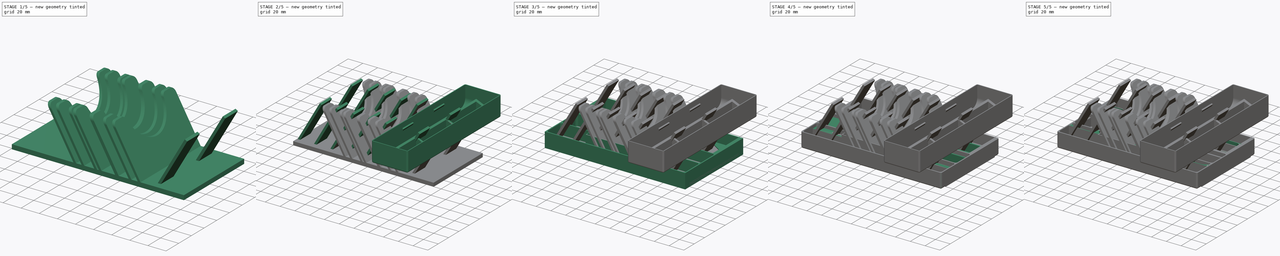
[diagram: build sequence overview — one tinted view per stage of 5, left to right]
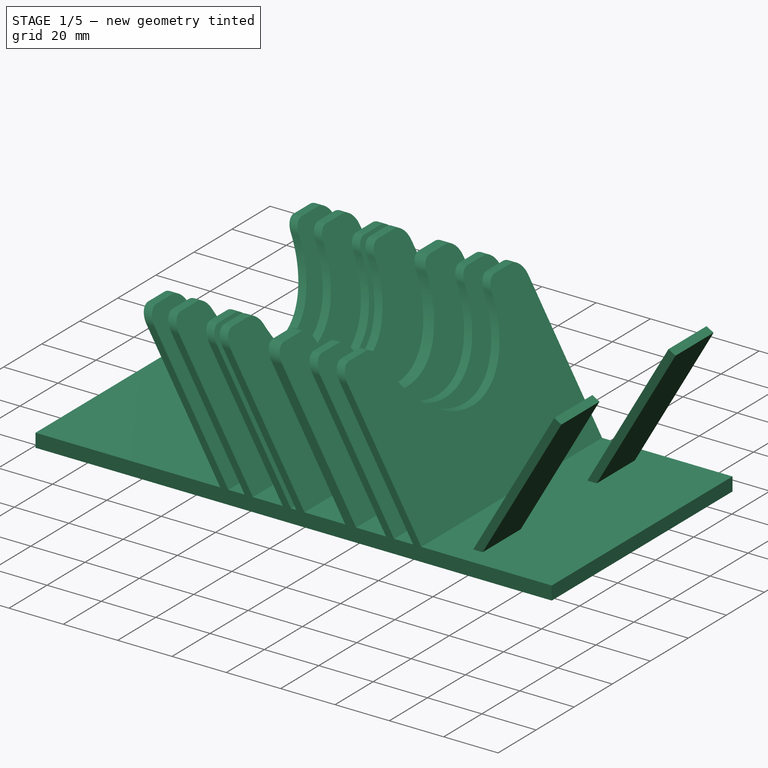
[diagram: stage 1 of 5 — iso view after this stage's code; geometry added in this stage tinted green]
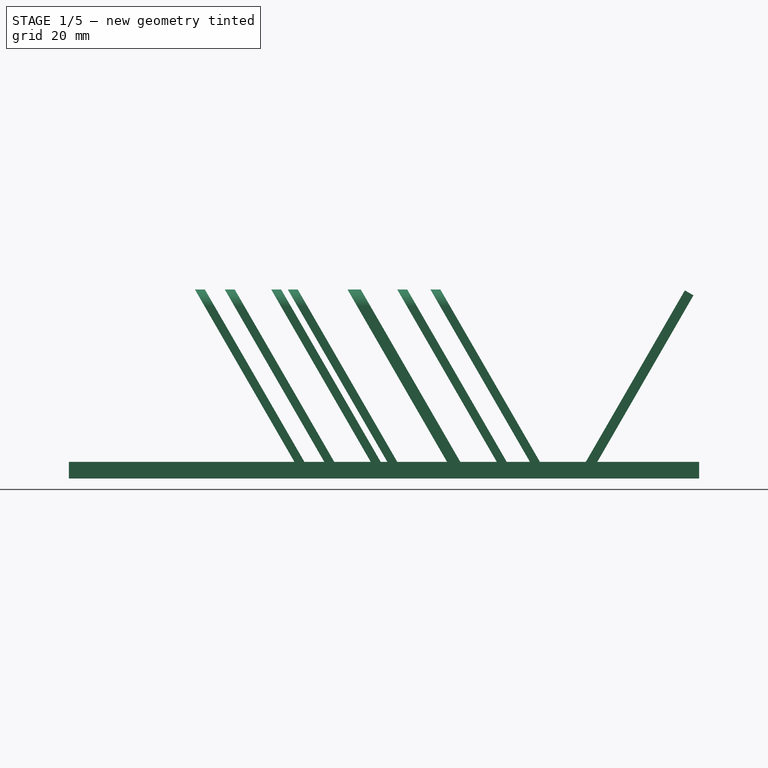
[diagram: stage 1 of 5 — front view after this stage's code; geometry added in this stage tinted green]
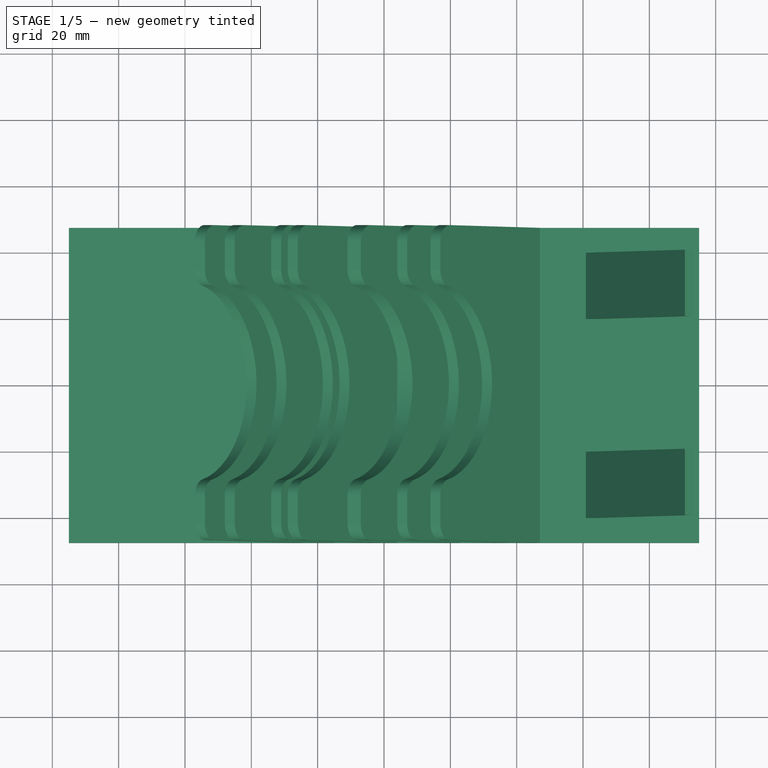
[diagram: stage 1 of 5 — top view after this stage's code; geometry added in this stage tinted green]
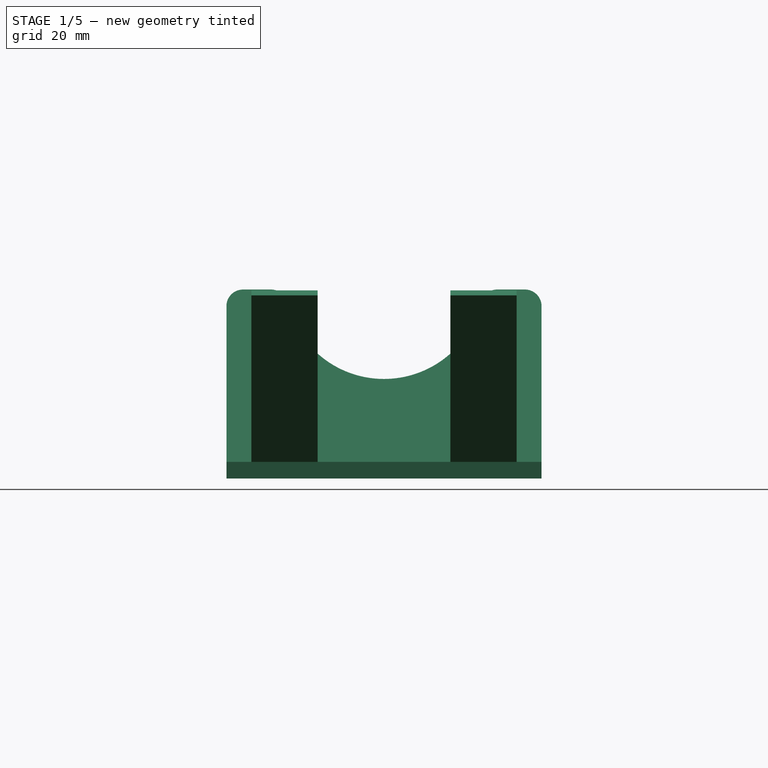
[diagram: stage 1 of 5 — right view after this stage's code; geometry added in this stage tinted green]
FCSTD DOCUMENT  (FreeCAD 0.20R29603 (Git))
Label: GuildMaster
License: All rights reserved
LicenseURL: http://en.wikipedia.org/wiki/All_rights_reserved
objects: Sketcher::SketchObject×27, PartDesign::Fillet×18, PartDesign::Pad×17, PartDesign::Plane×14, PartDesign::Body×12, PartDesign::Pocket×10, PartDesign::LinearPattern×9, PartDesign::MultiTransform×4, PartDesign::Thickness×3, PartDesign::Mirrored×3, App::Part×3, PartDesign::FeatureBase×3
note: 168 computed .brp shape members not serialized (recipe doc carries the construction recipe); baked Part::Feature solids carry a one-line shape summary decoded from their .brp

FEATURE [PartDesign::Body] Body005  label="PlayerTray-Box"
  Group = -> [Sketch017,Pad010,Thickness001,DatumPlane010,Sketch021,Pad013]
  Origin = -> Origin007
  Placement = pos=(-47,39,36) rot=(0,0,1;0rad)
  Tip = -> Pad013
FEATURE [App::Part] Part001  label="Players"
  Group = -> [Body005,Body006]
  Origin = -> Origin006
FEATURE [Sketcher::SketchObject] Sketch022
  FullyConstrained = true
  MapMode = 5
  Support = -> [XY_Plane010]
  sketch-geometry (4):
    g0: LineSegment StartX=-95 StartY=47.5 StartZ=0 EndX=95 EndY=47.5 EndZ=0
    g1: LineSegment StartX=95 StartY=47.5 StartZ=0 EndX=95 EndY=-47.5 EndZ=0
    g2: LineSegment StartX=95 StartY=-47.5 StartZ=0 EndX=-95 EndY=-47.5 EndZ=0
    g3: LineSegment StartX=-95 StartY=-47.5 StartZ=0 EndX=-95 EndY=47.5 EndZ=0
  constraints (10):
    c: Coincident(g0,g1)
    c: Coincident(g1,g2)
    c: Coincident(g2,g3)
    c: Coincident(g3,g0)
    c: Horizontal(g2)
    c: Vertical(g1)
    c: DistanceX(g0,g0) = 190
    c: Symmetric(g0,g0,g-2)
    c: Symmetric(g0,g2,g-1)
    c: DistanceY(g3,g3) = 95
FEATURE [PartDesign::Pad] Pad014
  Direction = (0,0,1)
  Length = 5
  Length2 = 10
  Profile = -> Sketch022
  ReferenceAxis = -> Sketch022 [N_Axis]
  Type = 0
FEATURE [PartDesign::Plane] DatumPlane011
  Length = 216.87
  MapMode = 5
  Placement = pos=(0,0,5) rot=(0,0,1;0rad)
  ResizeMode = 0
  Support = -> [Pad014]
  Width = 121.87
FEATURE [Sketcher::SketchObject] Sketch023
  AttachmentOffset = pos=(62,0,-1) rot=(0,1,0;0.523599rad)
  FullyConstrained = true
  MapMode = 5
  Placement = pos=(62,0,4) rot=(0,1,0;0.523599rad)
  Support = -> [DatumPlane011]
  sketch-geometry (8):
    g0: LineSegment StartX=-1.5 StartY=40 StartZ=0 EndX=1.5 EndY=40 EndZ=0
    g1: LineSegment StartX=1.5 StartY=40 StartZ=0 EndX=1.5 EndY=20 EndZ=0
    g2: LineSegment StartX=1.5 StartY=20 StartZ=0 EndX=-1.5 EndY=20 EndZ=0
    g3: LineSegment StartX=-1.5 StartY=20 StartZ=0 EndX=-1.5 EndY=40 EndZ=0
    g4: LineSegment StartX=-1.5 StartY=-20 StartZ=0 EndX=1.5 EndY=-20 EndZ=0
    g5: LineSegment StartX=1.5 StartY=-20 StartZ=0 EndX=1.5 EndY=-40 EndZ=0
    g6: LineSegment StartX=1.5 StartY=-40 StartZ=0 EndX=-1.5 EndY=-40 EndZ=0
    g7: LineSegment StartX=-1.5 StartY=-40 StartZ=0 EndX=-1.5 EndY=-20 EndZ=0
  constraints (22):
    c: Coincident(g0,g1)
    c: Coincident(g1,g2)
    c: Coincident(g2,g3)
    c: Coincident(g3,g0)
    c: Horizontal(g0)
    c: Horizontal(g2)
    c: Vertical(g1)
    c: Vertical(g3)
    c: Coincident(g4,g5)
    c: Coincident(g5,g6)
    c: Coincident(g6,g7)
    c: Coincident(g7,g4)
    c: Horizontal(g4)
    c: Vertical(g5)
    c: Vertical(g7)
    c: Symmetric(g6,g5,g-2)
    c: Equal(g4,g0)
    c: Equal(g3,g7)
    c: Symmetric(g4,g2,g-1)
    c: DistanceX(g0,g0) = 3
    c: DistanceY(g-1,g0) = 40
    c: DistanceY(g-1,g1) = 20
FEATURE [PartDesign::Pad] Pad015
  BaseFeature = -> Pad014
  Direction = (0.5,0,0.866025)
  Length = 60
  Length2 = 10
  Profile = -> Sketch023
  ReferenceAxis = -> Sketch023 [N_Axis]
  Type = 0
FEATURE [PartDesign::Body] Body007  label="Card-Slots"
  Group = -> [Sketch022,Pad014,DatumPlane011,Sketch023,Pad015,LinearPattern009]
  Origin = -> Origin010
  Placement = pos=(0,132,0) rot=(0,0,1;0rad)
  Tip = -> LinearPattern009
FEATURE [Sketcher::SketchObject] Sketch024
  FullyConstrained = true
  MapMode = 5
  Support = -> [XY_Plane014]
  sketch-geometry (4):
    g0: LineSegment StartX=-47.5 StartY=-47.5 StartZ=0 EndX=47.5 EndY=-47.5 EndZ=0
    g1: LineSegment StartX=47.5 StartY=-47.5 StartZ=0 EndX=47.5 EndY=47.5 EndZ=0
    g2: LineSegment StartX=47.5 StartY=47.5 StartZ=0 EndX=-47.5 EndY=47.5 EndZ=0
    g3: LineSegment StartX=-47.5 StartY=47.5 StartZ=0 EndX=-47.5 EndY=-47.5 EndZ=0
  constraints (10):
    c: Coincident(g0,g1)
    c: Coincident(g1,g2)
    c: Coincident(g2,g3)
    c: Coincident(g3,g0)
    c: Horizontal(g0)
    c: Vertical(g1)
    c: DistanceX(g2,g2) = 95
    c: DistanceY(g3,g3) = 95
    c: Symmetric(g2,g1,g-2)
    c: Symmetric(g2,g0,g-1)
FEATURE [PartDesign::Pad] Pad016
  Direction = (0,0,1)
  Length = 5
  Length2 = 10
  Profile = -> Sketch024
  ReferenceAxis = -> Sketch024 [N_Axis]
  Type = 0
FEATURE [PartDesign::Plane] DatumPlane012
  Length = 60
  MapMode = 5
  Placement = pos=(0,47.5,0) rot=(0,0.707107,0.707107;3.14159rad)
  ResizeMode = 0
  Support = -> [Pad016]
  Width = 60
FEATURE [Sketcher::SketchObject] Sketch025
  FullyConstrained = true
  MapMode = 5
  Placement = pos=(0,47.5,0) rot=(0,0.707107,0.707107;3.14159rad)
  Support = -> [DatumPlane012]
  sketch-geometry (16):
    g0: LineSegment StartX=-47 StartY=5 StartZ=0 EndX=-17 EndY=56.9615 EndZ=0
    g1: LineSegment StartX=-17 StartY=56.9615 StartZ=0 EndX=-14 EndY=56.9615 EndZ=0
    g2: LineSegment StartX=-14 StartY=56.9615 StartZ=0 EndX=-44 EndY=5 EndZ=0
    g3: LineSegment StartX=-22 StartY=5 StartZ=0 EndX=8 EndY=56.9615 EndZ=0
    g4: LineSegment StartX=8 StartY=56.9615 StartZ=0 EndX=11 EndY=56.9615 EndZ=0
    g5: LineSegment StartX=11 StartY=56.9615 StartZ=0 EndX=-19 EndY=5 EndZ=0
    g6: LineSegment StartX=1 StartY=5 StartZ=0 EndX=31 EndY=56.9615 EndZ=0
    g7: LineSegment StartX=31 StartY=56.9615 StartZ=0 EndX=34 EndY=56.9615 EndZ=0
    g8: LineSegment StartX=34 StartY=56.9615 StartZ=0 EndX=4 EndY=5 EndZ=0
    g9: LineSegment StartX=24 StartY=5 StartZ=0 EndX=54 EndY=56.9615 EndZ=0
    g10: LineSegment StartX=54 StartY=56.9615 StartZ=0 EndX=57 EndY=56.9615 EndZ=0
    g11: LineSegment StartX=57 StartY=56.9615 StartZ=0 EndX=27 EndY=5 EndZ=0
    g12: LineSegment StartX=-47 StartY=5 StartZ=0 EndX=-44 EndY=5 EndZ=0
    g13: LineSegment StartX=-22 StartY=5 StartZ=0 EndX=-19 EndY=5 EndZ=0
    g14: LineSegment StartX=1 StartY=5 StartZ=0 EndX=4 EndY=5 EndZ=0
    g15: LineSegment StartX=24 StartY=5 StartZ=0 EndX=27 EndY=5 EndZ=0
  constraints (48):
    c: Coincident(g0,g1)
    c: Coincident(g1,g2)
    c: Coincident(g3,g4)
    c: Horizontal(g4)
    c: Coincident(g4,g5)
    c: Coincident(g6,g7)
    c: Horizontal(g7)
    c: Coincident(g7,g8)
    c: Coincident(g9,g10)
    c: Coincident(g10,g11)
    c: Coincident(g0,g12)
    c: Coincident(g12,g2)
    c: Coincident(g13,g5)
    c: Coincident(g14,g8)
    c: Coincident(g15,g11)
    c: Horizontal(g12)
    c: Horizontal(g13)
    c: Horizontal(g14)
    c: Horizontal(g15)
    c: Horizontal(g1)
    c: Horizontal(g10)
    c: Equal(g1,g4)
    c: Equal(g4,g7)
    c: Equal(g7,g10)
    c: Equal(g12,g13)
    c: Equal(g13,g14)
    c: Equal(g14,g15)
    c: Equal(g12,g1)
    c: DistanceY(g-1,g0) = 5
    c: Coincident(g13,g3)
    c: Coincident(g14,g6)
    c: Coincident(g15,g9)
    c: DistanceY(g-1,g3) = 5
    c: DistanceY(g-1,g6) = 5
    c: DistanceY(g-1,g9) = 5
    c: Angle(g12,g0) = 1.0472
    c: Angle(g13,g3) = 1.0472
    c: Angle(g14,g6) = 1.0472
    c: Angle(g15,g9) = 1.0472
    c: Distance(g0) = 60
    c: Equal(g0,g3)
    c: Equal(g3,g6)
    c: Equal(g6,g9)
    c: DistanceX(g12,g12) = 3
    c: DistanceX(g2,g3) = 22
    c: DistanceX(g5,g6) = 20
    c: DistanceX(g8,g9) = 20
    c: DistanceX(g0,g-1) = 47
FEATURE [PartDesign::Pad] Pad017
  BaseFeature = -> Pad016
  Direction = (0,1,-2e-16)
  Length = 10
  Length2 = 10
  Profile = -> Sketch025
  ReferenceAxis = -> Sketch025 [N_Axis]
  Reversed = true
  Type = 3
  UpToFace = -> Pad016 [Face1]
FEATURE [Sketcher::SketchObject] Sketch026
  FullyConstrained = true
  MapMode = 5
  Support = -> [XY_Plane015]
  sketch-geometry (4):
    g0: LineSegment StartX=-47.5 StartY=47.5 StartZ=0 EndX=47.5 EndY=47.5 EndZ=0
    g1: LineSegment StartX=47.5 StartY=47.5 StartZ=0 EndX=47.5 EndY=-47.5 EndZ=0
    g2: LineSegment StartX=47.5 StartY=-47.5 StartZ=0 EndX=-47.5 EndY=-47.5 EndZ=0
    g3: LineSegment StartX=-47.5 StartY=-47.5 StartZ=0 EndX=-47.5 EndY=47.5 EndZ=0
  constraints (10):
    c: Coincident(g0,g1)
    c: Coincident(g1,g2)
    c: Coincident(g2,g3)
    c: Coincident(g3,g0)
    c: Horizontal(g2)
    c: Vertical(g1)
    c: DistanceX(g0,g0) = 95
    c: DistanceY(g3,g3) = 95
    c: Symmetric(g0,g0,g-2)
    c: Symmetric(g0,g2,g-1)
FEATURE [PartDesign::Pad] Pad018
  Direction = (0,0,1)
  Length = 5
  Length2 = 10
  Profile = -> Sketch026
  ReferenceAxis = -> Sketch026 [N_Axis]
  Type = 0
FEATURE [PartDesign::Plane] DatumPlane013
  Length = 60
  MapMode = 5
  Placement = pos=(0,47.5,0) rot=(0,0.707107,0.707107;3.14159rad)
  ResizeMode = 0
  Support = -> [Pad018]
  Width = 60
FEATURE [Sketcher::SketchObject] Sketch027
  FullyConstrained = true
  MapMode = 5
  Placement = pos=(0,47.5,0) rot=(0,0.707107,0.707107;3.14159rad)
  Support = -> [DatumPlane013]
  sketch-geometry (20):
    g0: LineSegment StartX=-47 StartY=5 StartZ=0 EndX=-17 EndY=56.9615 EndZ=0
    g1: LineSegment StartX=-17 StartY=56.9615 StartZ=0 EndX=-14 EndY=56.9615 EndZ=0
    g2: LineSegment StartX=-14 StartY=56.9615 StartZ=0 EndX=-44 EndY=5 EndZ=0
    g3: LineSegment StartX=-44 StartY=5 StartZ=0 EndX=-47 EndY=5 EndZ=0
    g4: LineSegment StartX=-37 StartY=5 StartZ=0 EndX=-7 EndY=56.9615 EndZ=0
    g5: LineSegment StartX=-7 StartY=56.9615 StartZ=0 EndX=-4 EndY=56.9615 EndZ=0
    g6: LineSegment StartX=-4 StartY=56.9615 StartZ=0 EndX=-34 EndY=5 EndZ=0
    g7: LineSegment StartX=-34 StartY=5 StartZ=0 EndX=-37 EndY=5 EndZ=0
    g8: LineSegment StartX=-23 StartY=5 StartZ=0 EndX=7 EndY=56.9615 EndZ=0
    g9: LineSegment StartX=7 StartY=56.9615 StartZ=0 EndX=10 EndY=56.9615 EndZ=0
    g10: LineSegment StartX=10 StartY=56.9615 StartZ=0 EndX=-20 EndY=5 EndZ=0
    g11: LineSegment StartX=-20 StartY=5 StartZ=0 EndX=-23 EndY=5 EndZ=0
    g12: LineSegment StartX=-4 StartY=5 StartZ=0 EndX=26 EndY=56.9615 EndZ=0
    g13: LineSegment StartX=26 StartY=56.9615 StartZ=0 EndX=29 EndY=56.9615 EndZ=0
    g14: LineSegment StartX=29 StartY=56.9615 StartZ=0 EndX=-1 EndY=5 EndZ=0
    g15: LineSegment StartX=-1 StartY=5 StartZ=0 EndX=-4 EndY=5 EndZ=0
    g16: LineSegment StartX=15 StartY=5 StartZ=0 EndX=45 EndY=56.9615 EndZ=0
    g17: LineSegment StartX=45 StartY=56.9615 StartZ=0 EndX=48 EndY=56.9615 EndZ=0
    g18: LineSegment StartX=48 StartY=56.9615 StartZ=0 EndX=18 EndY=5 EndZ=0
    g19: LineSegment StartX=18 StartY=5 StartZ=0 EndX=15 EndY=5 EndZ=0
  constraints (60):
    c: Coincident(g0,g1)
    c: Horizontal(g1)
    c: Coincident(g1,g2)
    c: Coincident(g2,g3)
    c: Coincident(g3,g0)
    c: Coincident(g4,g5)
    c: Coincident(g5,g6)
    c: Coincident(g6,g7)
    c: Coincident(g7,g4)
    c: Coincident(g8,g9)
    c: Horizontal(g9)
    c: Coincident(g9,g10)
    c: Coincident(g10,g11)
    c: Coincident(g11,g8)
    c: Horizontal(g11)
    c: Coincident(g12,g13)
    c: Horizontal(g13)
    c: Coincident(g13,g14)
    c: Coincident(g14,g15)
    c: Coincident(g15,g12)
    c: Equal(g1,g5)
    c: Equal(g5,g9)
    c: Equal(g9,g13)
    c: Horizontal(g5)
    c: Equal(g1,g3)
    c: Equal(g3,g7)
    c: Equal(g7,g11)
    c: Equal(g11,g15)
    c: Horizontal(g3)
    c: Horizontal(g7)
    c: Horizontal(g15)
    c: Equal(g0,g4)
    c: Equal(g4,g8)
    c: Equal(g8,g12)
    c: DistanceX(g3,g3) = 3
    c: Distance(g0) = 60
    c: Angle(g3,g0) = 1.0472
    c: Angle(g7,g4) = 1.0472
    c: Angle(g11,g8) = 1.0472
    c: Angle(g15,g12) = 1.0472
    c: DistanceY(g-1,g12) = 5
    c: DistanceY(g-1,g8) = 5
    c: DistanceY(g-1,g4) = 5
    c: DistanceY(g-1,g0) = 5
    c: DistanceX(g10,g12) = 16
    c: Coincident(g16,g17)
    c: Horizontal(g17)
    c: Coincident(g17,g18)
    c: Coincident(g18,g19)
    c: Coincident(g19,g16)
    c: Horizontal(g19)
    c: Equal(g19,g17)
    c: Equal(g17,g13)
    c: Equal(g16,g12)
    c: Angle(g19,g16) = 1.0472
    c: DistanceX(g14,g16) = 16
    c: DistanceX(g6,g8) = 11
    c: DistanceX(g2,g4) = 7
    c: DistanceX(g0,g-1) = 47
    c: DistanceY(g-1,g16) = 5
FEATURE [PartDesign::Pad] Pad019
  BaseFeature = -> Pad018
  Direction = (0,1,-2e-16)
  Length = 10
  Length2 = 10
  Profile = -> Sketch027
  ReferenceAxis = -> Sketch027 [N_Axis]
  Reversed = true
  Type = 3
  UpToFace = -> Pad018 [Face3]
FEATURE [PartDesign::Plane] DatumPlane014
  Length = 60
  MapMode = 5
  Placement = pos=(47.5,0,0) rot=(0.57735,0.57735,0.57735;2.0944rad)
  ResizeMode = 0
  Support = -> [Pad019]
  Width = 60
FEATURE [Sketcher::SketchObject] Sketch028
  FullyConstrained = true
  MapMode = 5
  Placement = pos=(47.5,0,0) rot=(0.57735,0.57735,0.57735;2.0944rad)
  Support = -> [DatumPlane014]
  sketch-geometry (1):
    g0: Circle CenterX=0 CenterY=60 CenterZ=0 NormalX=0 NormalY=0 NormalZ=1 AngleXU=0 Radius=30
  constraints (3):
    c: PointOnObject(g0,g-2)
    c: Radius(g0) = 30
    c: DistanceY(g-1,g0) = 60
FEATURE [PartDesign::Pocket] Pocket008
  BaseFeature = -> Pad019
  Direction = (-1,0,0)
  Length = 5
  Length2 = 5
  Profile = -> Sketch028
  ReferenceAxis = -> Sketch028 [N_Axis]
  Type = 1
FEATURE [PartDesign::Fillet] Fillet020
  Base = -> Pocket008 [Edge103,Edge112,Edge104,Edge111,Edge105,Edge110,Edge106,Edge109,Edge107,Edge108,Edge102,Edge49,Edge93,Edge43,Edge84,Edge37,Edge75,Edge31,Edge66,Edge25]
  BaseFeature = -> Pocket008
  Radius = 5
  SupportTransform = false
  UseAllEdges = false
FEATURE [PartDesign::Fillet] Fillet021
  Base = -> Fillet020 [Face16]
  BaseFeature = -> Fillet020
  Radius = 2
  SupportTransform = false
  UseAllEdges = false
FEATURE [PartDesign::Body] Body012  label="Adventurers"
  Group = -> [Sketch026,Pad018,DatumPlane013,Sketch027,Pad019,DatumPlane014,Sketch028,Pocket008,Fillet020,Fillet021]
  Origin = -> Origin015
  Placement = pos=(-47,233,0) rot=(0,0,1;0rad)
  Tip = -> Fillet021
FEATURE [PartDesign::Plane] DatumPlane015
  Length = 60
  MapMode = 5
  Placement = pos=(47.5,0,0) rot=(0.57735,0.57735,0.57735;2.0944rad)
  ResizeMode = 0
  Support = -> [Pad017]
  Width = 60
FEATURE [Sketcher::SketchObject] Sketch029
  FullyConstrained = true
  MapMode = 5
  Placement = pos=(47.5,0,0) rot=(0.57735,0.57735,0.57735;2.0944rad)
  Support = -> [DatumPlane015]
  sketch-geometry (1):
    g0: Circle CenterX=0 CenterY=60 CenterZ=0 NormalX=0 NormalY=0 NormalZ=1 AngleXU=0 Radius=30
  constraints (3):
    c: PointOnObject(g0,g-2)
    c: Radius(g0) = 30
    c: DistanceY(g-1,g0) = 60
FEATURE [PartDesign::Pocket] Pocket009
  BaseFeature = -> Pad017
  Direction = (-1,0,0)
  Length = 5
  Length2 = 5
  Profile = -> Sketch029
  ReferenceAxis = -> Sketch029 [N_Axis]
  Type = 1
FEATURE [PartDesign::Fillet] Fillet022
  Base = -> Pocket009 [Edge40,Edge80,Edge34,Edge71,Edge28,Edge62,Edge22,Edge53,Edge92,Edge85,Edge91,Edge86,Edge90,Edge87,Edge89,Edge88]
  BaseFeature = -> Pocket009
  Radius = 5
  SupportTransform = false
  UseAllEdges = false
FEATURE [PartDesign::Fillet] Fillet023
  Base = -> Fillet022 [Face16]
  BaseFeature = -> Fillet022
  Radius = 2
  SupportTransform = false
  UseAllEdges = false
FEATURE [PartDesign::Body] Body011  label="Contracts"
  Group = -> [Sketch024,Pad016,DatumPlane012,Sketch025,Pad017,DatumPlane015,Sketch029,Pocket009,Fillet022,Fillet023]
  Origin = -> Origin014
  Placement = pos=(48,233,0) rot=(0,0,1;0rad)
  Tip = -> Fillet023
FEATURE [App::Part] Part002  label="Cards"
  Group = -> [Body007,Body011,Body012]
  Origin = -> Origin009
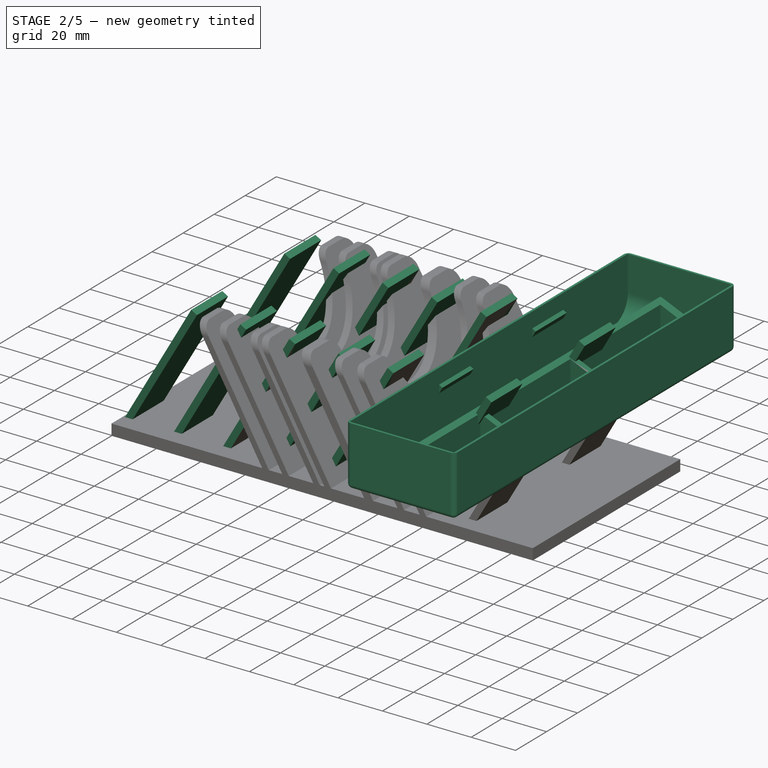
[diagram: stage 2 of 5 — iso view after this stage's code; geometry added in this stage tinted green]
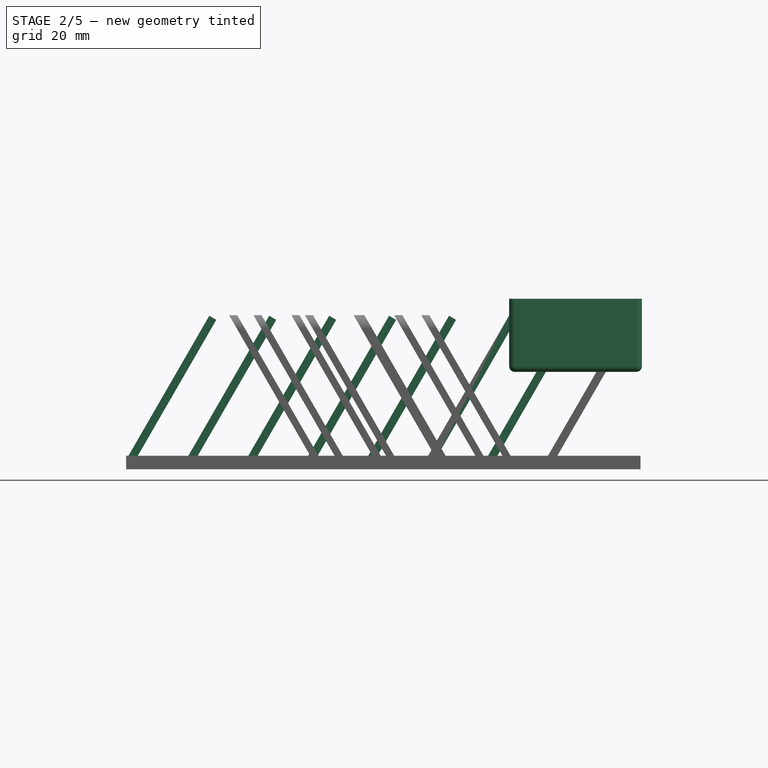
[diagram: stage 2 of 5 — front view after this stage's code; geometry added in this stage tinted green]
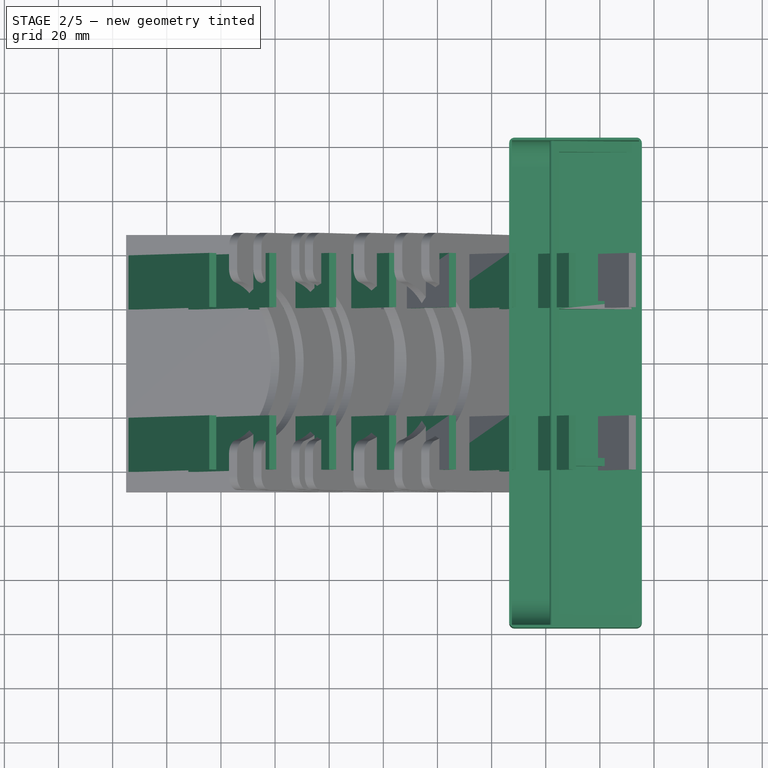
[diagram: stage 2 of 5 — top view after this stage's code; geometry added in this stage tinted green]
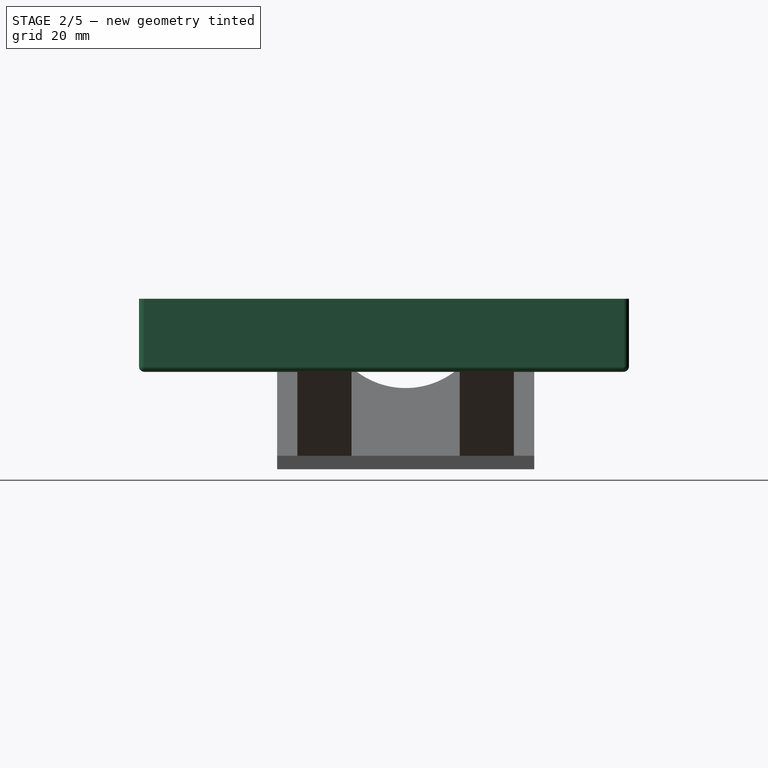
[diagram: stage 2 of 5 — right view after this stage's code; geometry added in this stage tinted green]
FEATURE [Sketcher::SketchObject] Sketch018
  FullyConstrained = true
  MapMode = 5
  Support = -> [XY_Plane008]
  sketch-geometry (4):
    g0: LineSegment StartX=-24.5 StartY=90.5 StartZ=0 EndX=24.5 EndY=90.5 EndZ=0
    g1: LineSegment StartX=24.5 StartY=90.5 StartZ=0 EndX=24.5 EndY=-90.5 EndZ=0
    g2: LineSegment StartX=24.5 StartY=-90.5 StartZ=0 EndX=-24.5 EndY=-90.5 EndZ=0
    g3: LineSegment StartX=-24.5 StartY=-90.5 StartZ=0 EndX=-24.5 EndY=90.5 EndZ=0
  constraints (10):
    c: Coincident(g0,g1)
    c: Coincident(g1,g2)
    c: Coincident(g2,g3)
    c: Coincident(g3,g0)
    c: Horizontal(g2)
    c: Vertical(g1)
    c: DistanceY(g3,g3) = 181
    c: DistanceX(g0,g0) = 49
    c: Symmetric(g0,g0,g-2)
    c: Symmetric(g0,g2,g-1)
FEATURE [PartDesign::Pad] Pad011
  Direction = (0,0,1)
  Length = 27
  Length2 = 10
  Profile = -> Sketch018
  ReferenceAxis = -> Sketch018 [N_Axis]
  Type = 0
FEATURE [PartDesign::Thickness] Thickness002
  Base = -> Pad011 [Face6]
  BaseFeature = -> Pad011
  Intersection = false
  Join = 0
  Mode = 0
  Reversed = true
  SupportTransform = false
  Value = 1
FEATURE [PartDesign::Plane] DatumPlane009
  Length = 60.198
  MapMode = 5
  Placement = pos=(0,89.5,0) rot=(1,0,0;1.5708rad)
  ResizeMode = 0
  Support = -> [Thickness002]
  Width = 62.198
FEATURE [Sketcher::SketchObject] Sketch019
  FullyConstrained = true
  MapMode = 5
  Placement = pos=(0,89.5,0) rot=(1,0,0;1.5708rad)
  Support = -> [DatumPlane009]
  sketch-geometry (3):
    g0: LineSegment StartX=-9.5 StartY=0 StartZ=0 EndX=-9.5 EndY=14 EndZ=0
    g1: LineSegment StartX=-9.5 StartY=14 StartZ=0 EndX=23 EndY=-1.8e-15 EndZ=0
    g2: LineSegment StartX=23 StartY=-1.8e-15 StartZ=0 EndX=-9.5 EndY=0 EndZ=0
  constraints (9):
    c: PointOnObject(g0,g-1)
    c: Vertical(g0)
    c: Coincident(g0,g1)
    c: PointOnObject(g1,g-1)
    c: Coincident(g1,g2)
    c: Coincident(g2,g0)
    c: DistanceX(g2,g2) = 32.5
    c: DistanceX(g-1,g1) = 23
    c: DistanceY(g0,g0) = 14
FEATURE [PartDesign::Pad] Pad012
  BaseFeature = -> Thickness002
  Direction = (0,-1,2e-16)
  Length = 10
  Length2 = 10
  Profile = -> Sketch019
  ReferenceAxis = -> Sketch019 [N_Axis]
  Type = 3
  UpToFace = -> Thickness002 [Face9]
FEATURE [Sketcher::SketchObject] Sketch020
  AttachmentOffset = pos=(0,1,4) rot=(0,0,1;0rad)
  FullyConstrained = true
  MapMode = 5
  Placement = pos=(0,85.5,1) rot=(1,0,0;1.5708rad)
  Support = -> [DatumPlane009]
  sketch-geometry (4):
    g0: LineSegment StartX=-6 StartY=0 StartZ=0 EndX=21 EndY=0 EndZ=0
    g1: LineSegment StartX=21 StartY=0 StartZ=0 EndX=21 EndY=15 EndZ=0
    g2: LineSegment StartX=21 StartY=15 StartZ=0 EndX=-6 EndY=15 EndZ=0
    g3: LineSegment StartX=-6 StartY=15 StartZ=0 EndX=-6 EndY=0 EndZ=0
  constraints (12):
    c: Coincident(g0,g1)
    c: Coincident(g1,g2)
    c: Coincident(g2,g3)
    c: Coincident(g3,g0)
    c: Horizontal(g0)
    c: Horizontal(g2)
    c: Vertical(g1)
    c: Vertical(g3)
    c: PointOnObject(g0,g-1)
    c: DistanceX(g0,g0) = 27
    c: DistanceX(g0,g-1) = 6
    c: DistanceY(g1,g1) = 15
FEATURE [PartDesign::Pocket] Pocket007
  BaseFeature = -> Pad012
  Direction = (0,1,-2e-16)
  Length = 55
  Length2 = 5
  Profile = -> Sketch020
  ReferenceAxis = -> Sketch020 [N_Axis]
  Reversed = true
  Type = 0
FEATURE [PartDesign::LinearPattern] LinearPattern008
  BaseFeature = -> Pocket007
  Direction = -> Sketch020 [N_Axis]
  Length = 116
  Occurrences = 3
  Originals = -> [Pocket007]
FEATURE [PartDesign::Fillet] Fillet017
  Base = -> LinearPattern008 [Edge29,Edge25]
  BaseFeature = -> LinearPattern008
  Radius = 10
  SupportTransform = false
  UseAllEdges = false
FEATURE [PartDesign::Fillet] Fillet018
  Base = -> Fillet017 [Edge71,Edge72,Edge76,Edge74,Face31]
  BaseFeature = -> Fillet017
  Radius = 2
  SupportTransform = false
  UseAllEdges = false
FEATURE [PartDesign::Fillet] Fillet019
  Base = -> Fillet018 [Edge68]
  BaseFeature = -> Fillet018
  Radius = 1
  SupportTransform = false
  UseAllEdges = false
FEATURE [PartDesign::FeatureBase] Clone
  BaseFeature = -> Body006
  Placement = pos=(71,-8,36) rot=(0,0,1;0rad)
FEATURE [PartDesign::Body] Body008
  Group = -> [Clone]
  Origin = -> Origin011
  Placement = pos=(-48,0,0) rot=(0,0,1;0rad)
  Tip = -> Clone
FEATURE [PartDesign::FeatureBase] Clone001
  BaseFeature = -> Body006
  Placement = pos=(71,-8,36) rot=(0,0,1;0rad)
FEATURE [PartDesign::Body] Body009
  Group = -> [Clone001]
  Origin = -> Origin012
  Placement = pos=(-97,0,0) rot=(0,0,1;0rad)
  Tip = -> Clone001
FEATURE [PartDesign::FeatureBase] Clone002
  BaseFeature = -> Body006
  Placement = pos=(71,-8,36) rot=(0,0,1;0rad)
FEATURE [PartDesign::Body] Body010
  Group = -> [Clone002]
  Origin = -> Origin013
  Placement = pos=(-146,0,0) rot=(0,0,1;0rad)
  Tip = -> Clone002
FEATURE [PartDesign::LinearPattern] LinearPattern009
  BaseFeature = -> Pad015
  Direction = -> X_Axis010
  Length = 155
  Occurrences = 8
  Originals = -> [Pad015]
  Reversed = true
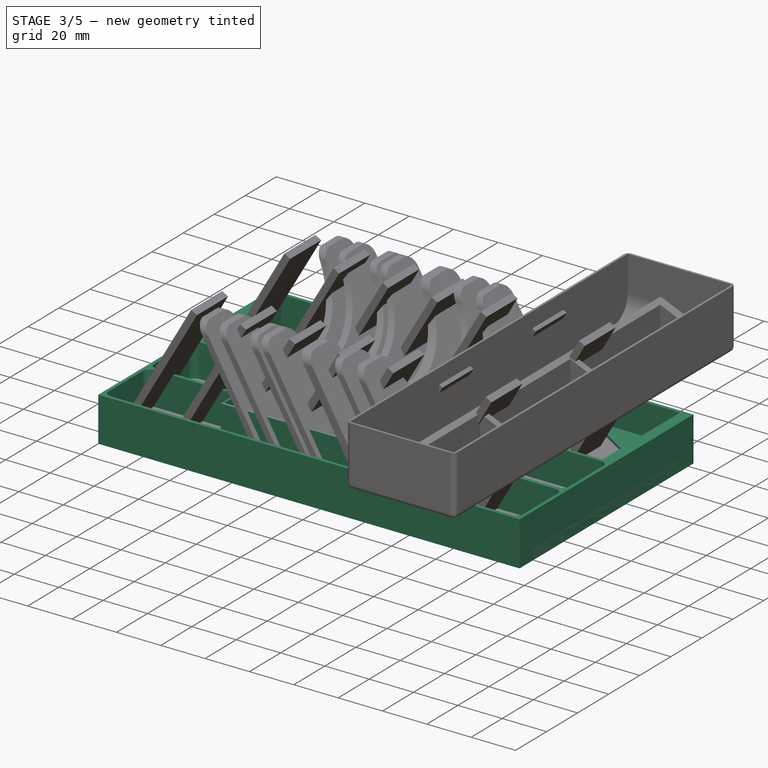
[diagram: stage 3 of 5 — iso view after this stage's code; geometry added in this stage tinted green]
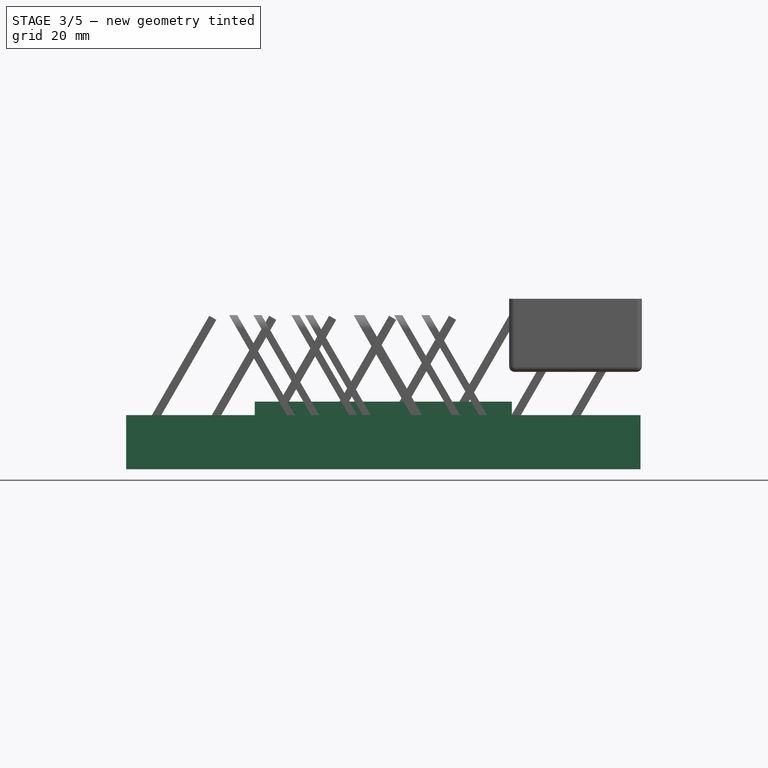
[diagram: stage 3 of 5 — front view after this stage's code; geometry added in this stage tinted green]
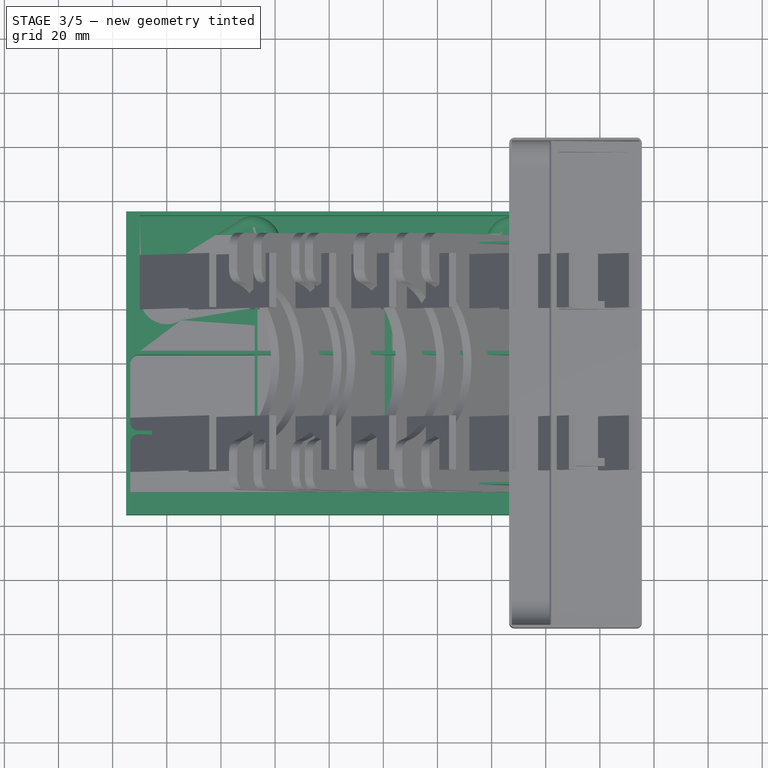
[diagram: stage 3 of 5 — top view after this stage's code; geometry added in this stage tinted green]
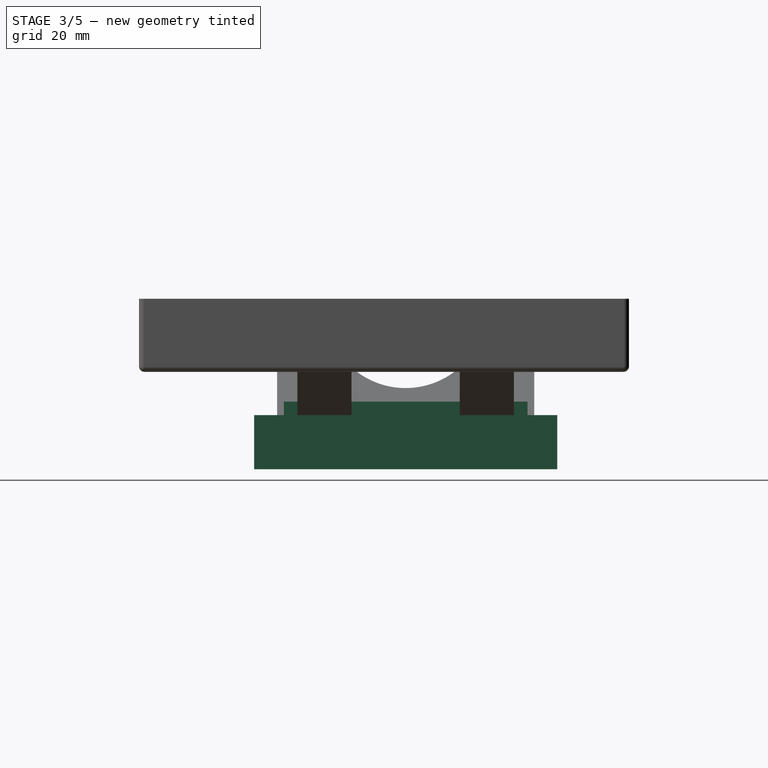
[diagram: stage 3 of 5 — right view after this stage's code; geometry added in this stage tinted green]
FEATURE [Sketcher::SketchObject] Sketch013
  FullyConstrained = true
  MapMode = 5
  Support = -> [XY_Plane005]
  sketch-geometry (4):
    g0: LineSegment StartX=-95 StartY=56 StartZ=0 EndX=95 EndY=56 EndZ=0
    g1: LineSegment StartX=95 StartY=56 StartZ=0 EndX=95 EndY=-56 EndZ=0
    g2: LineSegment StartX=95 StartY=-56 StartZ=0 EndX=-95 EndY=-56 EndZ=0
    g3: LineSegment StartX=-95 StartY=-56 StartZ=0 EndX=-95 EndY=56 EndZ=0
  constraints (10):
    c: Coincident(g0,g1)
    c: Coincident(g1,g2)
    c: Coincident(g2,g3)
    c: Coincident(g3,g0)
    c: Horizontal(g2)
    c: Vertical(g1)
    c: DistanceX(g0,g0) = 190
    c: DistanceY(g1,g1) = 112
    c: Symmetric(g0,g2,g-1)
    c: Symmetric(g0,g0,g-2)
FEATURE [PartDesign::Pad] Pad009
  Direction = (0,0,1)
  Length = 20
  Length2 = 10
  Profile = -> Sketch013
  ReferenceAxis = -> Sketch013 [N_Axis]
  Type = 0
FEATURE [PartDesign::Plane] DatumPlane007
  Length = 219.175
  MapMode = 5
  Placement = pos=(0,0,20) rot=(0,0,1;0rad)
  ResizeMode = 0
  Support = -> [Pad009]
  Width = 141.175
FEATURE [Sketcher::SketchObject] Sketch014
  AttachmentOffset = pos=(0,4.5,0) rot=(0,0,1;0rad)
  FullyConstrained = true
  MapMode = 5
  Placement = pos=(0,4.5,20) rot=(0,0,1;0rad)
  Support = -> [DatumPlane007]
  sketch-geometry (4):
    g0: LineSegment StartX=-90 StartY=0 StartZ=0 EndX=90 EndY=0 EndZ=0
    g1: LineSegment StartX=90 StartY=0 StartZ=0 EndX=90 EndY=50 EndZ=0
    g2: LineSegment StartX=90 StartY=50 StartZ=0 EndX=-90 EndY=50 EndZ=0
    g3: LineSegment StartX=-90 StartY=50 StartZ=0 EndX=-90 EndY=0 EndZ=0
  constraints (11):
    c: Coincident(g0,g1)
    c: Coincident(g1,g2)
    c: Coincident(g2,g3)
    c: Coincident(g3,g0)
    c: Horizontal(g0)
    c: Vertical(g1)
    c: Vertical(g3)
    c: PointOnObject(g0,g-1)
    c: Symmetric(g2,g1,g-2)
    c: DistanceY(g3,g3) = 50
    c: DistanceX(g2,g2) = 180
FEATURE [PartDesign::Pocket] Pocket004
  BaseFeature = -> Pad009
  Direction = (0,0,-1)
  Length = 14
  Length2 = 5
  Profile = -> Sketch014
  ReferenceAxis = -> Sketch014 [N_Axis]
  Type = 0
FEATURE [Sketcher::SketchObject] Sketch015
  AttachmentOffset = pos=(0,3,0) rot=(0,0,1;0rad)
  FullyConstrained = true
  MapMode = 5
  Placement = pos=(0,3,20) rot=(0,0,1;0rad)
  Support = -> [DatumPlane007]
  sketch-geometry (4):
    g0: LineSegment StartX=-93.5 StartY=0 StartZ=0 EndX=93.5 EndY=0 EndZ=0
    g1: LineSegment StartX=93.5 StartY=0 StartZ=0 EndX=93.5 EndY=-28 EndZ=0
    g2: LineSegment StartX=93.5 StartY=-28 StartZ=0 EndX=-93.5 EndY=-28 EndZ=0
    g3: LineSegment StartX=-93.5 StartY=-28 StartZ=0 EndX=-93.5 EndY=0 EndZ=0
  constraints (11):
    c: Coincident(g0,g1)
    c: Coincident(g1,g2)
    c: Coincident(g2,g3)
    c: Coincident(g3,g0)
    c: Horizontal(g0)
    c: Vertical(g1)
    c: Vertical(g3)
    c: PointOnObject(g0,g-1)
    c: DistanceX(g2,g2) = 187
    c: DistanceY(g3,g3) = 28
    c: Symmetric(g2,g1,g-2)
FEATURE [PartDesign::Pocket] Pocket005
  BaseFeature = -> Pocket004
  Direction = (0,0,-1)
  Length = 18.5
  Length2 = 5
  Profile = -> Sketch015
  ReferenceAxis = -> Sketch015 [N_Axis]
  Type = 0
FEATURE [PartDesign::LinearPattern] LinearPattern007
  BaseFeature = -> Pocket005
  Direction = -> Sketch015 [V_Axis]
  Length = 29.5
  Occurrences = 2
  Originals = -> [Pocket005]
  Reversed = true
FEATURE [PartDesign::Fillet] Fillet013
  Base = -> LinearPattern007 [Edge38,Edge30,Edge34,Edge26,Edge33,Edge25,Edge36,Edge28]
  BaseFeature = -> LinearPattern007
  Radius = 3
  SupportTransform = false
  UseAllEdges = false
FEATURE [PartDesign::Plane] DatumPlane008
  Length = 219.175
  MapMode = 5
  Placement = pos=(0,0,6) rot=(0,0,1;0rad)
  ResizeMode = 0
  Support = -> [Fillet013]
  Width = 141.175
FEATURE [Sketcher::SketchObject] Sketch016
  AttachmentOffset = pos=(0,4.5,0) rot=(0,0,1;0rad)
  FullyConstrained = true
  MapMode = 5
  Placement = pos=(0,4.5,6) rot=(0,0,1;0rad)
  Support = -> [DatumPlane008]
  sketch-geometry (4):
    g0: ArcOfCircle CenterX=-80 CenterY=20 CenterZ=0 NormalX=0 NormalY=0 NormalZ=1 AngleXU=0 Radius=10 StartAngle=2.1294 EndAngle=5.27099
    g1: ArcOfCircle CenterX=-48 CenterY=40 CenterZ=0 NormalX=0 NormalY=0 NormalZ=1 AngleXU=0 Radius=10 StartAngle=5.27099 EndAngle=8.41258
    g2: LineSegment StartX=-74.7 StartY=11.52 StartZ=0 EndX=-42.7 EndY=31.52 EndZ=0
    g3: LineSegment StartX=-53.3 StartY=48.48 StartZ=0 EndX=-85.3 EndY=28.48 EndZ=0
  constraints (10):
    c: Tangent(g0,g2) = -1.5708
    c: Tangent(g2,g1) = -1.5708
    c: Tangent(g1,g3) = -1.5708
    c: Tangent(g3,g0) = -1.5708
    c: Equal(g0,g1)
    c: DistanceY(g-1,g0) = 20
    c: DistanceY(g-1,g1) = 40
    c: DistanceX(g0,g-1) = 80
    c: DistanceX(g1,g-1) = 48
    c: Distance(g1,g1) = 20
FEATURE [PartDesign::Pocket] Pocket006
  BaseFeature = -> Fillet013
  Direction = (0,0,-1)
  Length = 4.5
  Length2 = 5
  Profile = -> Sketch016
  ReferenceAxis = -> Sketch016 [N_Axis]
  Type = 0
FEATURE [PartDesign::Mirrored] Mirrored002
  BaseFeature = -> Pocket006
  MirrorPlane = -> Sketch016 [V_Axis]
  Originals = -> [Pocket006]
FEATURE [PartDesign::Fillet] Fillet014
  Base = -> Mirrored002 [Face41,Face40]
  BaseFeature = -> Mirrored002
  Radius = 4
  SupportTransform = false
  UseAllEdges = false
FEATURE [PartDesign::Body] Body004  label="Extras"
  Group = -> [Sketch013,Pad009,DatumPlane007,Sketch014,Pocket004,Sketch015,Pocket005,LinearPattern007,Fillet013,DatumPlane008,Sketch016,Pocket006,Mirrored002,Fillet014,Fillet016]
  Origin = -> Origin005
  Placement = pos=(0,-20,0) rot=(0,0,1;0rad)
  Tip = -> Fillet016
FEATURE [App::Part] Part  label="Trays"
  Group = -> [Body,Body002,Body003,Body004]
  Origin = -> Origin
  Placement = pos=(0,-23,0) rot=(0,0,1;0rad)
FEATURE [Sketcher::SketchObject] Sketch017
  FullyConstrained = true
  MapMode = 5
  Support = -> [XY_Plane007]
  sketch-geometry (4):
    g0: LineSegment StartX=-47.5 StartY=45 StartZ=0 EndX=47.5 EndY=45 EndZ=0
    g1: LineSegment StartX=47.5 StartY=45 StartZ=0 EndX=47.5 EndY=-45 EndZ=0
    g2: LineSegment StartX=47.5 StartY=-45 StartZ=0 EndX=-47.5 EndY=-45 EndZ=0
    g3: LineSegment StartX=-47.5 StartY=-45 StartZ=0 EndX=-47.5 EndY=45 EndZ=0
  constraints (10):
    c: Coincident(g0,g1)
    c: Coincident(g1,g2)
    c: Coincident(g2,g3)
    c: Coincident(g3,g0)
    c: Horizontal(g2)
    c: Vertical(g1)
    c: DistanceX(g0,g0) = 95
    c: DistanceY(g3,g3) = 90
    c: Symmetric(g0,g0,g-2)
    c: Symmetric(g0,g2,g-1)
FEATURE [PartDesign::Pad] Pad010
  Direction = (0,0,1)
  Length = 25
  Length2 = 10
  Profile = -> Sketch017
  ReferenceAxis = -> Sketch017 [N_Axis]
  Type = 0
FEATURE [PartDesign::Thickness] Thickness001
  Base = -> Pad010 [Face6]
  BaseFeature = -> Pad010
  Intersection = false
  Join = 0
  Mode = 0
  Reversed = true
  SupportTransform = false
  Value = 1
FEATURE [PartDesign::Body] Body006  label="PlayerTray-Thin"
  Group = -> [Sketch018,Pad011,Thickness002,DatumPlane009,Sketch019,Pad012,Sketch020,Pocket007,LinearPattern008,Fillet017,Fillet018,Fillet019]
  Origin = -> Origin008
  Placement = pos=(71,-8,36) rot=(0,0,1;0rad)
  Tip = -> Fillet019
FEATURE [PartDesign::Plane] DatumPlane010
  Length = 113.493
  MapMode = 5
  Placement = pos=(0,0,1) rot=(0,0,1;0rad)
  ResizeMode = 0
  Support = -> [Thickness001]
  Width = 108.493
FEATURE [Sketcher::SketchObject] Sketch021
  FullyConstrained = true
  MapMode = 5
  Placement = pos=(0,0,1) rot=(0,0,1;0rad)
  Support = -> [DatumPlane010]
  sketch-geometry (4):
    g0: LineSegment StartX=-47 StartY=26 StartZ=0 EndX=3 EndY=26 EndZ=0
    g1: LineSegment StartX=3 StartY=26 StartZ=0 EndX=3 EndY=-44 EndZ=0
    g2: LineSegment StartX=3 StartY=-44 StartZ=0 EndX=-47 EndY=-44 EndZ=0
    g3: LineSegment StartX=-47 StartY=-44 StartZ=0 EndX=-47 EndY=26 EndZ=0
  constraints (12):
    c: Coincident(g0,g1)
    c: Coincident(g1,g2)
    c: Coincident(g2,g3)
    c: Coincident(g3,g0)
    c: Horizontal(g0)
    c: Horizontal(g2)
    c: Vertical(g1)
    c: Vertical(g3)
    c: DistanceY(g1,g1) = 70
    c: DistanceX(g0,g0) = 50
    c: DistanceX(g0,g-1) = 47
    c: DistanceY(g1,g-1) = 44
FEATURE [PartDesign::Pad] Pad013
  BaseFeature = -> Thickness001
  Direction = (0,0,1)
  Length = 10
  Length2 = 10
  Profile = -> Sketch021
  ReferenceAxis = -> Sketch021 [N_Axis]
  Type = 0
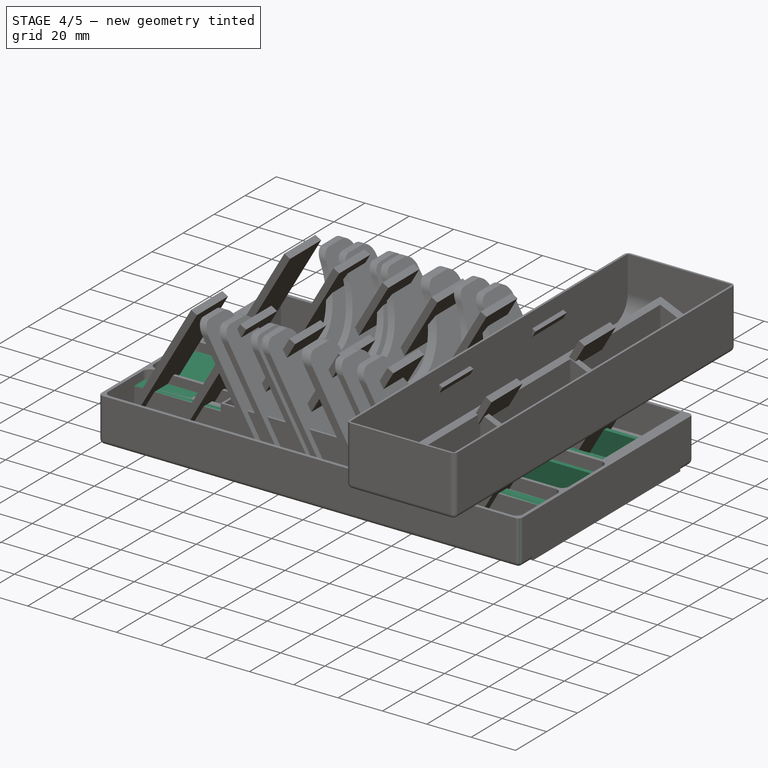
[diagram: stage 4 of 5 — iso view after this stage's code; geometry added in this stage tinted green]
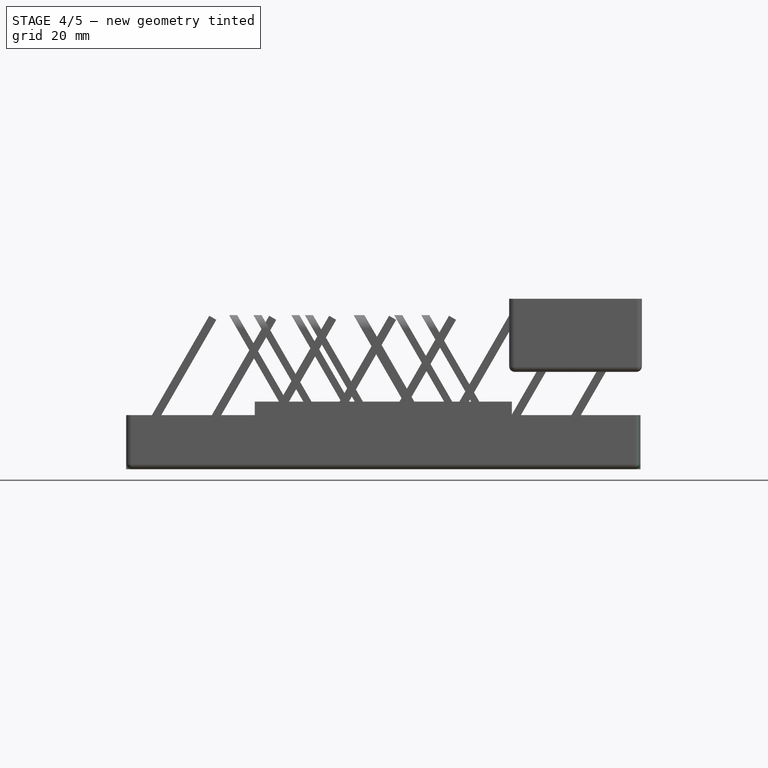
[diagram: stage 4 of 5 — front view after this stage's code; geometry added in this stage tinted green]
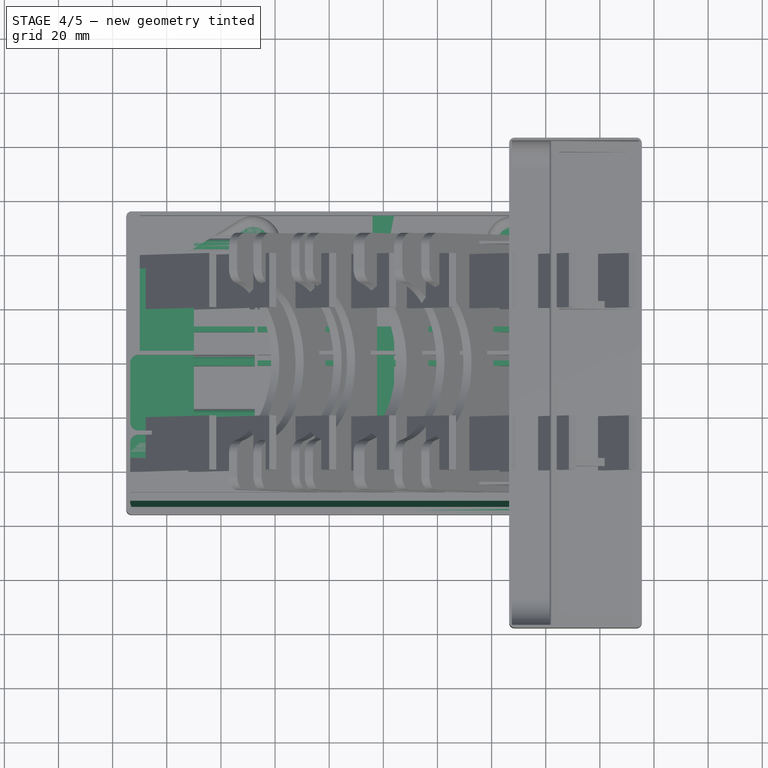
[diagram: stage 4 of 5 — top view after this stage's code; geometry added in this stage tinted green]
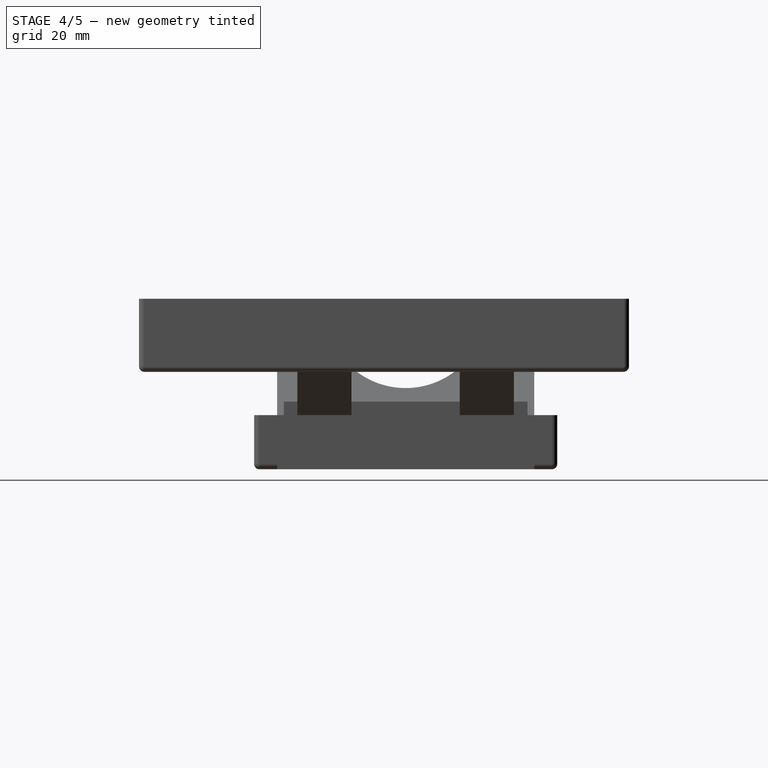
[diagram: stage 4 of 5 — right view after this stage's code; geometry added in this stage tinted green]
FEATURE [Sketcher::SketchObject] Sketch005
  FullyConstrained = true
  MapMode = 5
  Support = -> [XY_Plane003]
  sketch-geometry (4):
    g0: LineSegment StartX=-95 StartY=35 StartZ=0 EndX=95 EndY=35 EndZ=0
    g1: LineSegment StartX=95 StartY=35 StartZ=0 EndX=95 EndY=-35 EndZ=0
    g2: LineSegment StartX=95 StartY=-35 StartZ=0 EndX=-95 EndY=-35 EndZ=0
    g3: LineSegment StartX=-95 StartY=-35 StartZ=0 EndX=-95 EndY=35 EndZ=0
  constraints (10):
    c: Coincident(g0,g1)
    c: Coincident(g1,g2)
    c: Coincident(g2,g3)
    c: Coincident(g3,g0)
    c: Horizontal(g2)
    c: Vertical(g1)
    c: DistanceX(g0,g0) = 190
    c: DistanceY(g3,g3) = 70
    c: Symmetric(g0,g0,g-2)
    c: Symmetric(g0,g2,g-1)
FEATURE [PartDesign::Pad] Pad005
  Direction = (0,0,1)
  Length = 16
  Length2 = 10
  Profile = -> Sketch005
  ReferenceAxis = -> Sketch005 [N_Axis]
  Type = 0
FEATURE [PartDesign::Plane] DatumPlane003
  Length = 213.065
  MapMode = 5
  Placement = pos=(0,0,16) rot=(0,0,1;0rad)
  ResizeMode = 0
  Support = -> [Pad005]
  Width = 93.0651
FEATURE [Sketcher::SketchObject] Sketch006
  AttachmentOffset = pos=(67,17,0) rot=(0,0,1;0rad)
  FullyConstrained = true
  MapMode = 5
  Placement = pos=(67,17,16) rot=(0,0,1;0rad)
  Support = -> [DatumPlane003]
  sketch-geometry (4):
    g0: LineSegment StartX=-27 StartY=16 StartZ=0 EndX=27 EndY=16 EndZ=0
    g1: LineSegment StartX=27 StartY=16 StartZ=0 EndX=27 EndY=-16 EndZ=0
    g2: LineSegment StartX=27 StartY=-16 StartZ=0 EndX=-27 EndY=-16 EndZ=0
    g3: LineSegment StartX=-27 StartY=-16 StartZ=0 EndX=-27 EndY=16 EndZ=0
  constraints (10):
    c: Coincident(g0,g1)
    c: Coincident(g1,g2)
    c: Coincident(g2,g3)
    c: Coincident(g3,g0)
    c: Horizontal(g2)
    c: Vertical(g1)
    c: DistanceX(g0,g0) = 54
    c: DistanceY(g3,g3) = 32
    c: Symmetric(g0,g0,g-2)
    c: Symmetric(g0,g2,g-1)
FEATURE [PartDesign::Pocket] Pocket
  BaseFeature = -> Pad005
  Direction = (0,0,-1)
  Length = 14.5
  Length2 = 5
  Profile = -> Sketch006
  ReferenceAxis = -> Sketch006 [N_Axis]
  Type = 0
FEATURE [PartDesign::Mirrored] Mirrored
  MirrorPlane = -> XZ_Plane003
FEATURE [PartDesign::LinearPattern] LinearPattern
  Direction = -> Sketch006 [H_Axis]
  Length = 110
  Occurrences = 3
  Reversed = true
FEATURE [PartDesign::MultiTransform] MultiTransform
  BaseFeature = -> Pocket
  Originals = -> [Pocket]
  Transformations = -> [Mirrored,LinearPattern]
FEATURE [PartDesign::Body] Body002  label="Skills"
  Group = -> [Sketch005,Pad005,DatumPlane003,Sketch006,Pocket,MultiTransform,Mirrored,LinearPattern,Sketch007,Pocket001,Sketch008,DatumPlane004,Pad006,MultiTransform001,Mirrored001,LinearPattern002,Fillet006,Fillet007,Fillet010]
  Origin = -> Origin003
  Placement = pos=(0,71,20) rot=(0,0,1;0rad)
  Tip = -> Fillet010
FEATURE [Sketcher::SketchObject] Sketch009
  FullyConstrained = true
  MapMode = 5
  Support = -> [XY_Plane004]
  sketch-geometry (4):
    g0: LineSegment StartX=-95 StartY=56 StartZ=0 EndX=95 EndY=56 EndZ=0
    g1: LineSegment StartX=95 StartY=56 StartZ=0 EndX=95 EndY=-56 EndZ=0
    g2: LineSegment StartX=95 StartY=-56 StartZ=0 EndX=-95 EndY=-56 EndZ=0
    g3: LineSegment StartX=-95 StartY=-56 StartZ=0 EndX=-95 EndY=56 EndZ=0
  constraints (10):
    c: Coincident(g0,g1)
    c: Coincident(g1,g2)
    c: Coincident(g2,g3)
    c: Coincident(g3,g0)
    c: Horizontal(g2)
    c: Vertical(g1)
    c: Symmetric(g0,g0,g-2)
    c: Symmetric(g2,g0,g-1)
    c: DistanceX(g0,g0) = 190
    c: DistanceY(g3,g3) = 112
FEATURE [PartDesign::Pad] Pad007
  Direction = (0,0,1)
  Length = 16
  Length2 = 10
  Profile = -> Sketch009
  ReferenceAxis = -> Sketch009 [N_Axis]
  Type = 0
FEATURE [PartDesign::Plane] DatumPlane005
  Length = 219.175
  MapMode = 5
  Placement = pos=(0,0,16) rot=(0,0,1;0rad)
  ResizeMode = 0
  Support = -> [Pad007]
  Width = 141.175
FEATURE [Sketcher::SketchObject] Sketch010
  AttachmentOffset = pos=(47,34,0) rot=(0,0,1;0rad)
  FullyConstrained = true
  MapMode = 5
  Placement = pos=(47,34,16) rot=(0,0,1;0rad)
  Support = -> [DatumPlane005]
  sketch-geometry (4):
    g0: LineSegment StartX=-43 StartY=20.5 StartZ=0 EndX=43 EndY=20.5 EndZ=0
    g1: LineSegment StartX=43 StartY=20.5 StartZ=0 EndX=43 EndY=-20.5 EndZ=0
    g2: LineSegment StartX=43 StartY=-20.5 StartZ=0 EndX=-43 EndY=-20.5 EndZ=0
    g3: LineSegment StartX=-43 StartY=-20.5 StartZ=0 EndX=-43 EndY=20.5 EndZ=0
  constraints (10):
    c: Coincident(g0,g1)
    c: Coincident(g1,g2)
    c: Coincident(g2,g3)
    c: Coincident(g3,g0)
    c: Horizontal(g2)
    c: Vertical(g1)
    c: DistanceY(g3,g3) = 41
    c: DistanceX(g0,g0) = 86
    c: Symmetric(g0,g0,g-2)
    c: Symmetric(g0,g2,g-1)
FEATURE [PartDesign::Pocket] Pocket002
  BaseFeature = -> Pad007
  Direction = (0,0,-1)
  Length = 14.5
  Length2 = 5
  Profile = -> Sketch010
  ReferenceAxis = -> Sketch010 [N_Axis]
  Type = 0
FEATURE [PartDesign::LinearPattern] LinearPattern003
  Direction = -> Sketch010 [H_Axis]
  Length = 94
  Occurrences = 2
  Reversed = true
FEATURE [PartDesign::LinearPattern] LinearPattern004
  Direction = -> Sketch010 [V_Axis]
  Length = 43
  Occurrences = 2
  Reversed = true
FEATURE [PartDesign::MultiTransform] MultiTransform002
  BaseFeature = -> Pocket002
  Originals = -> [Pocket002]
  Transformations = -> [LinearPattern003,LinearPattern004]
FEATURE [Sketcher::SketchObject] Sketch011
  AttachmentOffset = pos=(0,-43,0) rot=(1,0,0;0.174533rad)
  FullyConstrained = true
  MapMode = 5
  Placement = pos=(0,-43,16) rot=(1,0,0;0.174533rad)
  Support = -> [DatumPlane005]
  sketch-geometry (4):
    g0: LineSegment StartX=-93.5 StartY=10 StartZ=0 EndX=93.5 EndY=10 EndZ=0
    g1: LineSegment StartX=93.5 StartY=10 StartZ=0 EndX=93.5 EndY=-10 EndZ=0
    g2: LineSegment StartX=93.5 StartY=-10 StartZ=0 EndX=-93.5 EndY=-10 EndZ=0
    g3: LineSegment StartX=-93.5 StartY=-10 StartZ=0 EndX=-93.5 EndY=10 EndZ=0
  constraints (10):
    c: Coincident(g0,g1)
    c: Coincident(g1,g2)
    c: Coincident(g2,g3)
    c: Coincident(g3,g0)
    c: Horizontal(g2)
    c: Vertical(g1)
    c: DistanceX(g0,g0) = 187
    c: DistanceY(g3,g3) = 20
    c: Symmetric(g0,g2,g-1)
    c: Symmetric(g0,g0,g-2)
FEATURE [PartDesign::Pocket] Pocket003
  BaseFeature = -> MultiTransform002
  Direction = (0,0.173648,-0.984808)
  Length = 28
  Length2 = 5
  Midplane = true
  Profile = -> Sketch011
  ReferenceAxis = -> Sketch011 [N_Axis]
  Type = 0
FEATURE [PartDesign::Plane] DatumPlane006
  Length = 219.175
  MapMode = 5
  Placement = pos=(0,0,0) rot=(1,0,0;3.14159rad)
  ResizeMode = 0
  Support = -> [Pocket003]
  Width = 141.175
FEATURE [Sketcher::SketchObject] Sketch012
  AttachmentOffset = pos=(47,-34,0) rot=(0,0,1;0rad)
  FullyConstrained = true
  MapMode = 5
  Placement = pos=(47,34,0) rot=(1,0,0;3.14159rad)
  Support = -> [DatumPlane006]
  sketch-geometry (8):
    g0: LineSegment StartX=-25 StartY=7.5 StartZ=0 EndX=25 EndY=7.5 EndZ=0
    g1: LineSegment StartX=25 StartY=7.5 StartZ=0 EndX=25 EndY=12.5 EndZ=0
    g2: LineSegment StartX=25 StartY=12.5 StartZ=0 EndX=-25 EndY=12.5 EndZ=0
    g3: LineSegment StartX=-25 StartY=12.5 StartZ=0 EndX=-25 EndY=7.5 EndZ=0
    g4: LineSegment StartX=-25 StartY=-7.5 StartZ=0 EndX=25 EndY=-7.5 EndZ=0
    g5: LineSegment StartX=25 StartY=-7.5 StartZ=0 EndX=25 EndY=-12.5 EndZ=0
    g6: LineSegment StartX=25 StartY=-12.5 StartZ=0 EndX=-25 EndY=-12.5 EndZ=0
    g7: LineSegment StartX=-25 StartY=-12.5 StartZ=0 EndX=-25 EndY=-7.5 EndZ=0
  constraints (20):
    c: Coincident(g0,g1)
    c: Coincident(g1,g2)
    c: Coincident(g2,g3)
    c: Coincident(g3,g0)
    c: Horizontal(g0)
    c: Vertical(g1)
    c: Vertical(g3)
    c: Coincident(g4,g5)
    c: Coincident(g5,g6)
    c: Coincident(g6,g7)
    c: Coincident(g7,g4)
    c: Horizontal(g6)
    c: Vertical(g5)
    c: Symmetric(g2,g6,g-1)
    c: Symmetric(g0,g4,g-1)
    c: Symmetric(g2,g1,g-2)
    c: Symmetric(g4,g4,g-2)
    c: DistanceX(g2,g2) = 50
    c: DistanceY(g5,g1) = 25
    c: DistanceY(g1,g1) = 5
FEATURE [PartDesign::Pad] Pad008
  BaseFeature = -> Pocket003
  Direction = (0,0,-1)
  Length = 6
  Length2 = 10
  Profile = -> Sketch012
  ReferenceAxis = -> Sketch012 [N_Axis]
  Reversed = true
  Type = 0
FEATURE [PartDesign::LinearPattern] LinearPattern005
  Direction = -> Sketch012 [H_Axis]
  Length = 94
  Occurrences = 2
  Reversed = true
FEATURE [PartDesign::LinearPattern] LinearPattern006
  Direction = -> Sketch012 [V_Axis]
  Length = 43
  Occurrences = 2
FEATURE [PartDesign::MultiTransform] MultiTransform003
  BaseFeature = -> Pad008
  Originals = -> [Pad008]
  Transformations = -> [LinearPattern005,LinearPattern006]
FEATURE [PartDesign::Fillet] Fillet011
  Base = -> MultiTransform003 [Face77,Face76,Face79,Face78,Face75,Face74,Face72,Face73]
  BaseFeature = -> MultiTransform003
  Radius = 2
  SupportTransform = false
  UseAllEdges = false
FEATURE [PartDesign::Fillet] Fillet015
  Base = -> Fillet011 [Face45,Edge76,Edge73,Edge74,Edge78]
  BaseFeature = -> Fillet011
  Radius = 2
  SupportTransform = false
  UseAllEdges = false
FEATURE [PartDesign::Body] Body003  label="Upgrades"
  Group = -> [Sketch009,Pad007,DatumPlane005,Sketch010,Pocket002,MultiTransform002,LinearPattern003,LinearPattern004,Sketch011,Pocket003,Sketch012,DatumPlane006,Pad008,MultiTransform003,LinearPattern005,LinearPattern006,Fillet011,Fillet015]
  Origin = -> Origin004
  Placement = pos=(0,-20,20) rot=(0,0,1;0rad)
  Tip = -> Fillet015
FEATURE [PartDesign::Fillet] Fillet016
  Base = -> Fillet014 [Face48,Edge99,Edge96,Edge97,Edge101]
  BaseFeature = -> Fillet014
  Radius = 2
  SupportTransform = false
  UseAllEdges = false
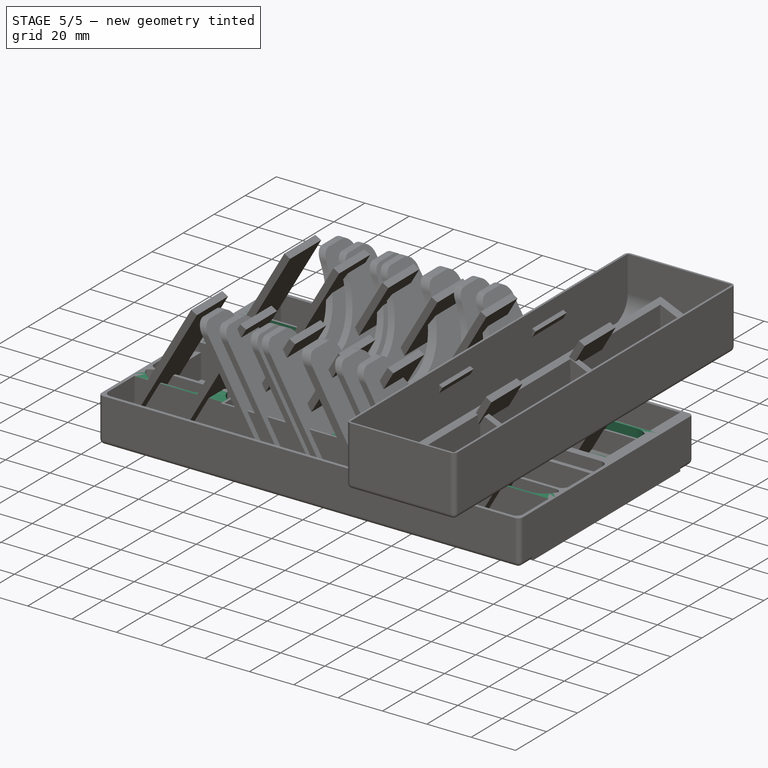
[diagram: stage 5 of 5 — iso view after this stage's code; geometry added in this stage tinted green]
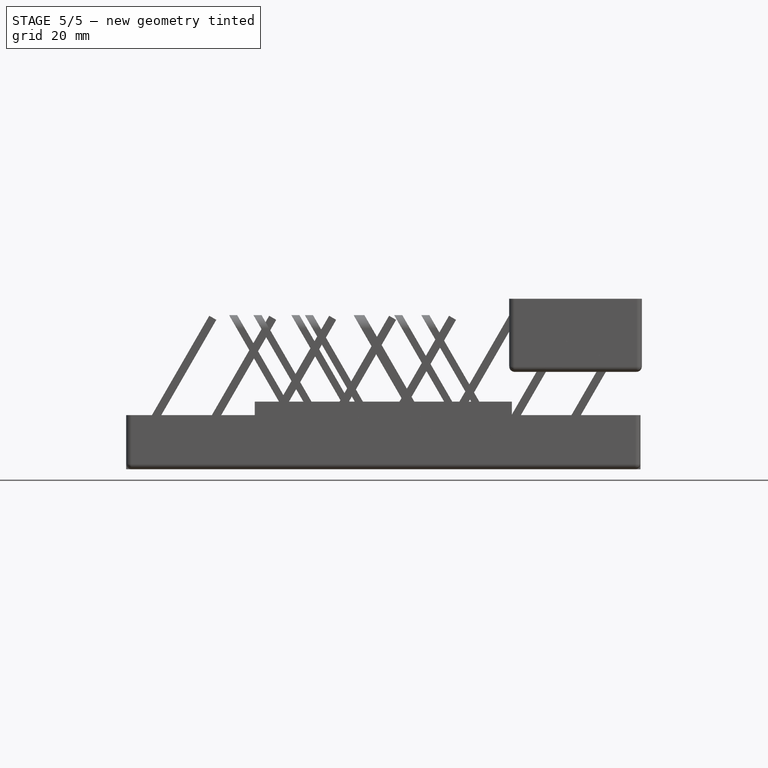
[diagram: stage 5 of 5 — front view after this stage's code; geometry added in this stage tinted green]
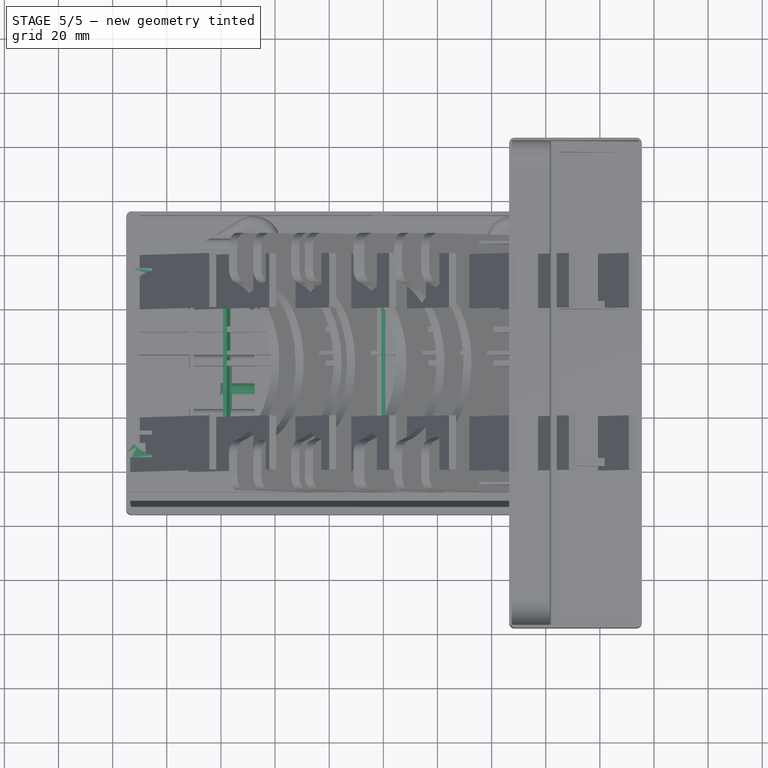
[diagram: stage 5 of 5 — top view after this stage's code; geometry added in this stage tinted green]
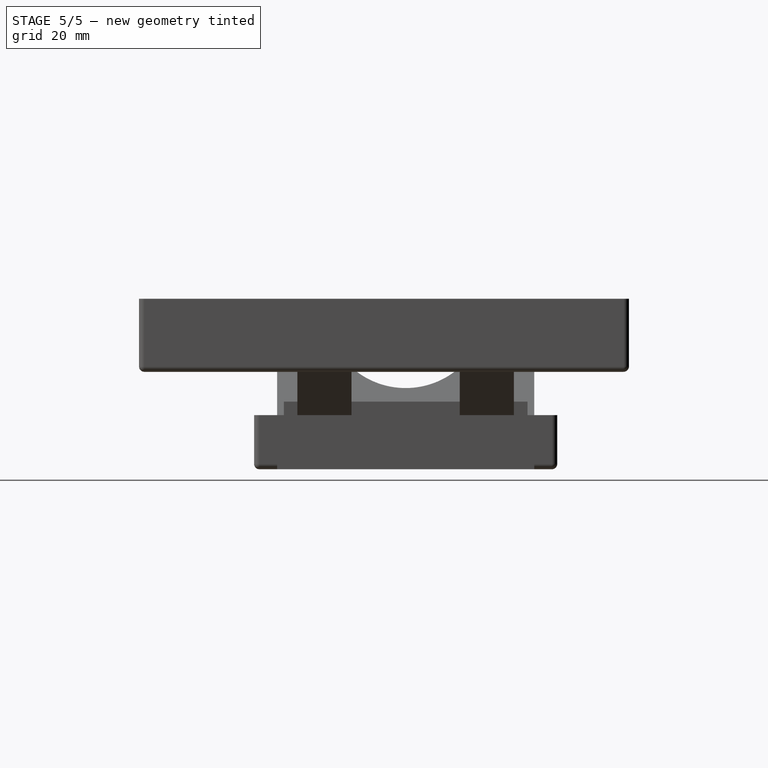
[diagram: stage 5 of 5 — right view after this stage's code; geometry added in this stage tinted green]
FEATURE [Sketcher::SketchObject] Sketch
  FullyConstrained = true
  MapMode = 5
  Support = -> [XY_Plane001]
  sketch-geometry (4):
    g0: LineSegment StartX=-95 StartY=35 StartZ=0 EndX=95 EndY=35 EndZ=0
    g1: LineSegment StartX=95 StartY=35 StartZ=0 EndX=95 EndY=-35 EndZ=0
    g2: LineSegment StartX=95 StartY=-35 StartZ=0 EndX=-95 EndY=-35 EndZ=0
    g3: LineSegment StartX=-95 StartY=-35 StartZ=0 EndX=-95 EndY=35 EndZ=0
  constraints (10):
    c: Coincident(g0,g1)
    c: Coincident(g1,g2)
    c: Coincident(g2,g3)
    c: Coincident(g3,g0)
    c: Horizontal(g2)
    c: Vertical(g1)
    c: DistanceX(g0,g0) = 190
    c: DistanceY(g3,g3) = 70
    c: Symmetric(g0,g0,g-2)
    c: Symmetric(g0,g2,g-1)
FEATURE [PartDesign::Pad] Pad
  Direction = (0,0,1)
  Length = 20
  Length2 = 10
  Profile = -> Sketch
  ReferenceAxis = -> Sketch [N_Axis]
  Type = 0
FEATURE [PartDesign::Thickness] Thickness
  Base = -> Pad [Face6]
  BaseFeature = -> Pad
  Intersection = false
  Join = 0
  Mode = 0
  Reversed = true
  SupportTransform = false
  Value = 1
FEATURE [PartDesign::Plane] DatumPlane
  Length = 60
  MapMode = 5
  Placement = pos=(0,34,0) rot=(1,0,0;1.5708rad)
  ResizeMode = 0
  Support = -> [Thickness]
  Width = 60
FEATURE [Sketcher::SketchObject] Sketch001
  FullyConstrained = true
  MapMode = 5
  Placement = pos=(0,34,0) rot=(1,0,0;1.5708rad)
  Support = -> [DatumPlane]
  sketch-geometry (12):
    g0: LineSegment StartX=-0.75 StartY=0 StartZ=0 EndX=0.75 EndY=0 EndZ=0
    g1: LineSegment StartX=0.75 StartY=0 StartZ=0 EndX=0.75 EndY=20 EndZ=0
    g2: LineSegment StartX=0.75 StartY=20 StartZ=0 EndX=-0.75 EndY=20 EndZ=0
    g3: LineSegment StartX=-0.75 StartY=20 StartZ=0 EndX=-0.75 EndY=0 EndZ=0
    g4: LineSegment StartX=-57.75 StartY=0 StartZ=0 EndX=-59.25 EndY=0 EndZ=0
    g5: LineSegment StartX=-59.25 StartY=0 StartZ=0 EndX=-59.25 EndY=20 EndZ=0
    g6: LineSegment StartX=-59.25 StartY=20 StartZ=0 EndX=-57.75 EndY=20 EndZ=0
    g7: LineSegment StartX=-57.75 StartY=20 StartZ=0 EndX=-57.75 EndY=0 EndZ=0
    g8: LineSegment StartX=49.25 StartY=0 StartZ=0 EndX=50.75 EndY=0 EndZ=0
    g9: LineSegment StartX=50.75 StartY=0 StartZ=0 EndX=50.75 EndY=20 EndZ=0
    g10: LineSegment StartX=50.75 StartY=20 StartZ=0 EndX=49.25 EndY=20 EndZ=0
    g11: LineSegment StartX=49.25 StartY=20 StartZ=0 EndX=49.25 EndY=0 EndZ=0
  constraints (35):
    c: Coincident(g0,g1)
    c: Coincident(g1,g2)
    c: Coincident(g2,g3)
    c: Coincident(g3,g0)
    c: Horizontal(g0)
    c: Vertical(g1)
    c: Vertical(g3)
    c: PointOnObject(g0,g-1)
    c: DistanceX(g2,g2) = 1.5
    c: Symmetric(g2,g1,g-2)
    c: DistanceY(g3,g3) = 20
    c: Coincident(g4,g5)
    c: Coincident(g5,g6)
    c: Coincident(g6,g7)
    c: Coincident(g7,g4)
    c: Horizontal(g4)
    c: Horizontal(g6)
    c: Vertical(g5)
    c: Vertical(g7)
    c: PointOnObject(g4,g-1)
    c: Coincident(g8,g9)
    c: Coincident(g9,g10)
    c: Coincident(g10,g11)
    c: Coincident(g11,g8)
    c: Horizontal(g8)
    c: Horizontal(g10)
    c: Vertical(g9)
    c: Vertical(g11)
    c: PointOnObject(g8,g-1)
    c: Equal(g7,g3)
    c: Equal(g3,g11)
    c: Equal(g6,g2)
    c: Equal(g2,g10)
    c: DistanceX(g5,g2) = 58.5
    c: DistanceX(g1,g10) = 48.5
FEATURE [PartDesign::Pad] Pad001
  BaseFeature = -> Thickness
  Direction = (0,-1,2e-16)
  Length = 10
  Length2 = 10
  Profile = -> Sketch001
  ReferenceAxis = -> Sketch001 [N_Axis]
  Type = 3
  UpToFace = -> Thickness [Face9]
FEATURE [PartDesign::Fillet] Fillet
  Base = -> Pad001 [Edge63,Edge65,Edge68,Edge71,Edge66,Edge69,Edge41,Edge46,Edge51,Edge48,Edge53,Edge43,Edge62,Edge56,Edge58,Edge59]
  BaseFeature = -> Pad001
  Radius = 10
  SupportTransform = false
  UseAllEdges = false
FEATURE [Sketcher::SketchObject] Sketch007
  AttachmentOffset = pos=(-82.5,0,0) rot=(0,0,1;0rad)
  FullyConstrained = true
  MapMode = 5
  Placement = pos=(-82.5,0,16) rot=(0,0,1;0rad)
  Support = -> [DatumPlane003]
  sketch-geometry (4):
    g0: LineSegment StartX=-11 StartY=33 StartZ=0 EndX=11 EndY=33 EndZ=0
    g1: LineSegment StartX=11 StartY=33 StartZ=0 EndX=11 EndY=-33 EndZ=0
    g2: LineSegment StartX=11 StartY=-33 StartZ=0 EndX=-11 EndY=-33 EndZ=0
    g3: LineSegment StartX=-11 StartY=-33 StartZ=0 EndX=-11 EndY=33 EndZ=0
  constraints (10):
    c: Coincident(g0,g1)
    c: Coincident(g1,g2)
    c: Coincident(g2,g3)
    c: Coincident(g3,g0)
    c: Horizontal(g2)
    c: Vertical(g1)
    c: DistanceY(g1,g1) = 66
    c: DistanceX(g0,g0) = 22
    c: Symmetric(g0,g0,g-2)
    c: Symmetric(g0,g2,g-1)
FEATURE [PartDesign::Pocket] Pocket001
  BaseFeature = -> MultiTransform
  Direction = (0,0,-1)
  Length = 14.5
  Length2 = 5
  Profile = -> Sketch007
  ReferenceAxis = -> Sketch007 [N_Axis]
  Type = 0
FEATURE [PartDesign::Plane] DatumPlane004
  Length = 213.065
  MapMode = 5
  Placement = pos=(0,0,0) rot=(1,0,0;3.14159rad)
  ResizeMode = 0
  Support = -> [Pocket001]
  Width = 93.0651
FEATURE [Sketcher::SketchObject] Sketch008
  AttachmentOffset = pos=(67,17,0) rot=(0,0,1;0rad)
  FullyConstrained = true
  MapMode = 5
  Placement = pos=(67,-17,0) rot=(1,0,0;3.14159rad)
  Support = -> [DatumPlane004]
  sketch-geometry (8):
    g0: LineSegment StartX=-17.5 StartY=10 StartZ=0 EndX=17.5 EndY=10 EndZ=0
    g1: LineSegment StartX=17.5 StartY=-10 StartZ=0 EndX=-17.5 EndY=-10 EndZ=0
    g2: LineSegment StartX=-17.5 StartY=5 StartZ=0 EndX=17.5 EndY=5 EndZ=0
    g3: LineSegment StartX=17.5 StartY=-5 StartZ=0 EndX=-17.5 EndY=-5 EndZ=0
    g4: LineSegment StartX=17.5 StartY=10 StartZ=0 EndX=17.5 EndY=5 EndZ=0
    g5: LineSegment StartX=17.5 StartY=-5 StartZ=0 EndX=17.5 EndY=-10 EndZ=0
    g6: LineSegment StartX=-17.5 StartY=-10 StartZ=0 EndX=-17.5 EndY=-5 EndZ=0
    g7: LineSegment StartX=-17.5 StartY=5 StartZ=0 EndX=-17.5 EndY=10 EndZ=0
  constraints (20):
    c: Coincident(g0,g4)
    c: Coincident(g5,g1)
    c: Coincident(g1,g6)
    c: Coincident(g7,g0)
    c: Horizontal(g1)
    c: DistanceX(g0,g0) = 35
    c: DistanceY(g6,g7) = 20
    c: Symmetric(g0,g0,g-2)
    c: Symmetric(g0,g1,g-1)
    c: Horizontal(g3)
    c: Symmetric(g2,g2,g-2)
    c: Symmetric(g2,g3,g-1)
    c: DistanceY(g3,g2) = 10
    c: Vertical(g4)
    c: Vertical(g5)
    c: Coincident(g2,g7)
    c: Coincident(g2,g4)
    c: Coincident(g3,g5)
    c: Equal(g2,g3)
    c: Coincident(g6,g3)
FEATURE [PartDesign::Pad] Pad006
  BaseFeature = -> Pocket001
  Direction = (0,0,-1)
  Length = 6
  Length2 = 10
  Profile = -> Sketch008
  ReferenceAxis = -> Sketch008 [N_Axis]
  Reversed = true
  Type = 0
FEATURE [PartDesign::Mirrored] Mirrored001
  MirrorPlane = -> XZ_Plane003
FEATURE [PartDesign::LinearPattern] LinearPattern002
  Direction = -> Sketch008 [H_Axis]
  Length = 110
  Occurrences = 3
  Reversed = true
FEATURE [PartDesign::MultiTransform] MultiTransform001
  BaseFeature = -> Pad006
  Originals = -> [Pad006]
  Transformations = -> [Mirrored001,LinearPattern002]
FEATURE [PartDesign::Fillet] Fillet006
  Base = -> MultiTransform001 [Face109,Face108,Face102,Face103,Face111,Face110,Face104,Face105,Face113,Face112,Face106,Face107]
  BaseFeature = -> MultiTransform001
  Radius = 2
  SupportTransform = false
  UseAllEdges = false
FEATURE [PartDesign::Fillet] Fillet007
  Base = -> Fillet006 [Face56]
  BaseFeature = -> Fillet006
  Radius = 2
  SupportTransform = false
  UseAllEdges = false
FEATURE [PartDesign::Fillet] Fillet008
  Base = -> Fillet [Face37,Face30,Face23]
  BaseFeature = -> Fillet
  Radius = 10
  SupportTransform = false
  UseAllEdges = false
FEATURE [PartDesign::Fillet] Fillet009
  Base = -> Fillet008 [Face54,Edge104,Edge101,Edge102,Edge106]
  BaseFeature = -> Fillet008
  Radius = 2
  SupportTransform = false
  UseAllEdges = false
FEATURE [PartDesign::Body] Body  label="Coins"
  Group = -> [Sketch,Pad,Thickness,DatumPlane,Sketch001,Pad001,Fillet,Fillet008,Fillet009]
  Origin = -> Origin001
  Placement = pos=(0,71,0) rot=(0,0,1;0rad)
  Tip = -> Fillet009
FEATURE [PartDesign::Fillet] Fillet010
  Base = -> Fillet007 [Face39,Edge52,Edge49,Edge50,Edge54]
  BaseFeature = -> Fillet007
  Radius = 2
  SupportTransform = false
  UseAllEdges = false
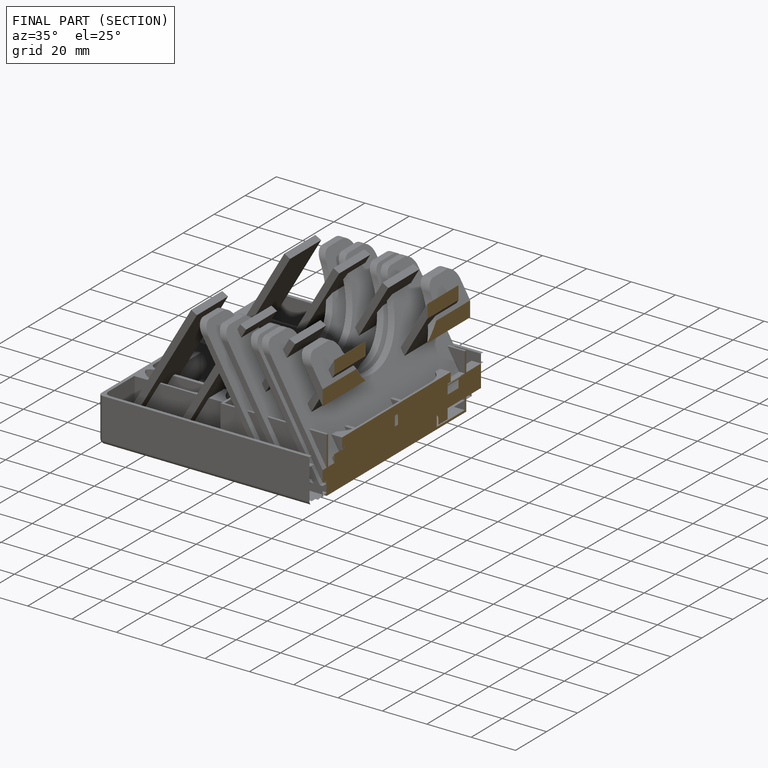
[diagram: finished part — half-section view (interior)]
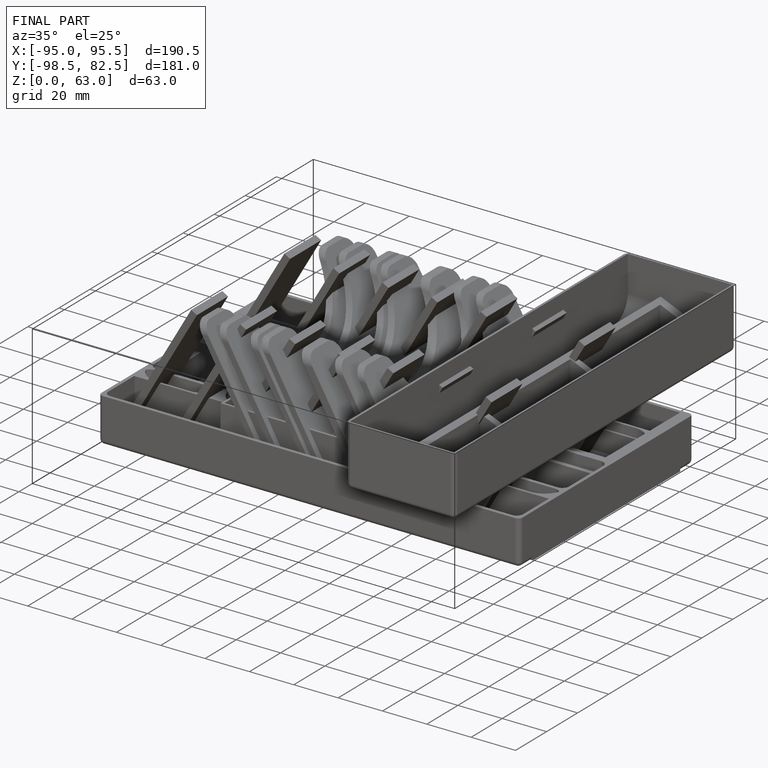
[diagram: finished part — iso view with bounding-box wireframe]
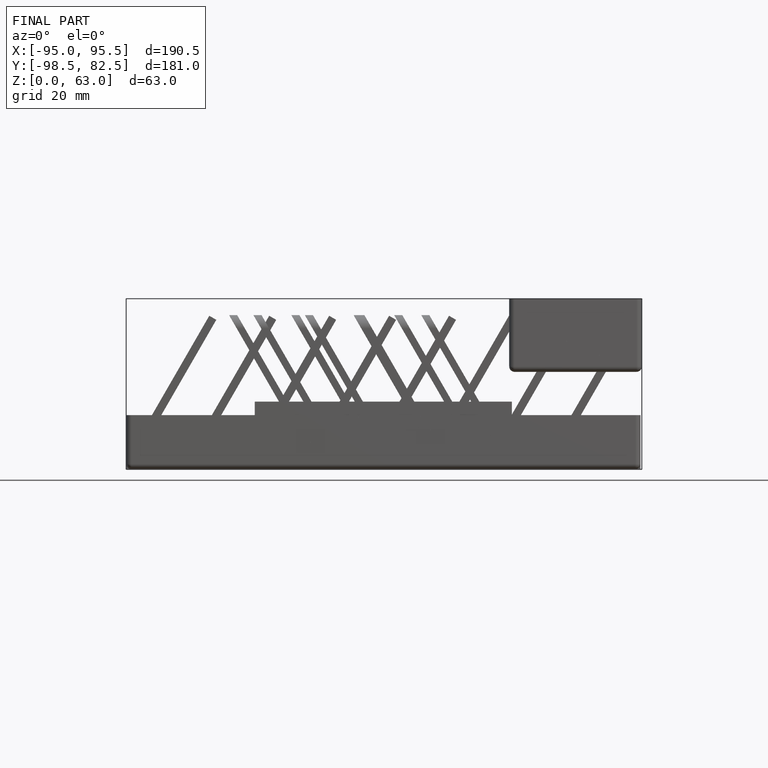
[diagram: finished part — front view with bounding-box wireframe]
